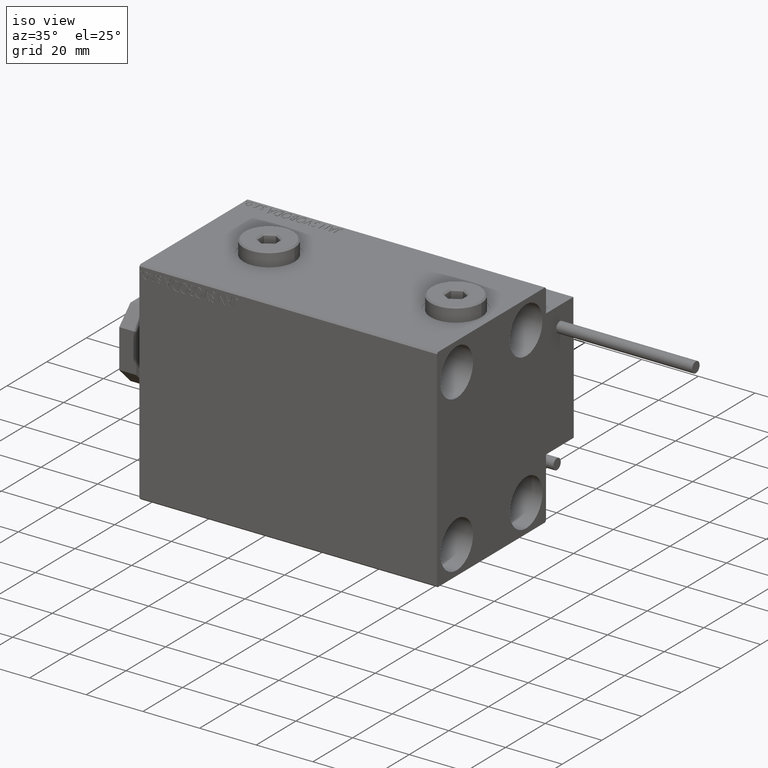
[diagram: clean part render]
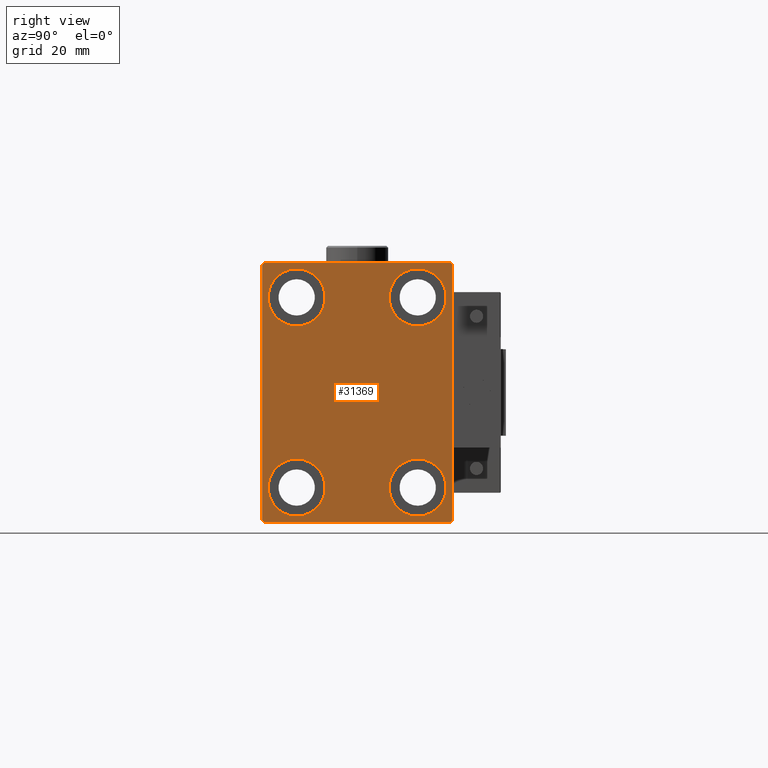
[diagram: tour spotlight — one face highlighted and labeled with its STEP entity id]
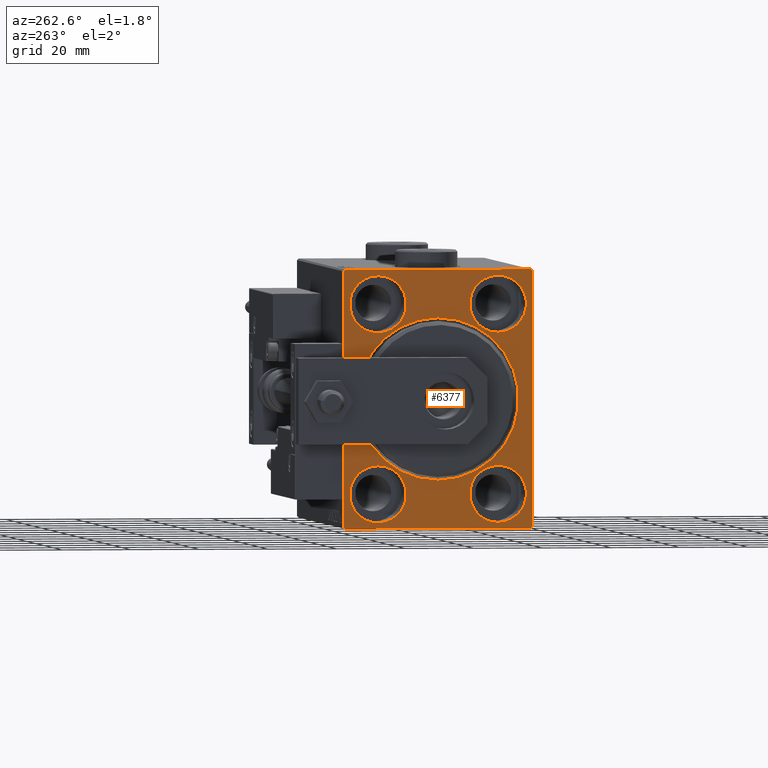
[diagram: tour spotlight — one face highlighted and labeled with its STEP entity id]
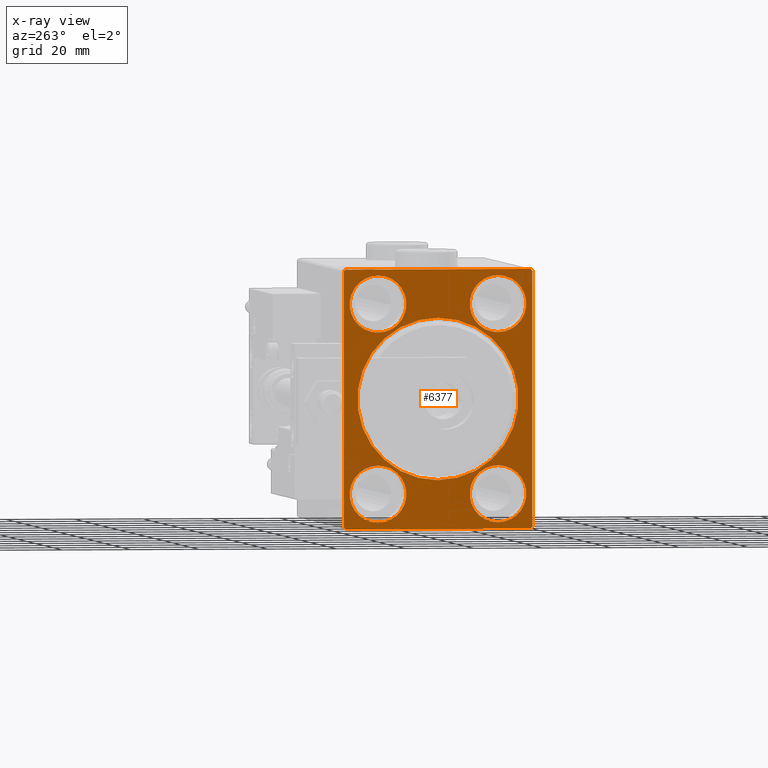
[diagram: x-ray of the same camera — body ghosted, this tour face saturated]
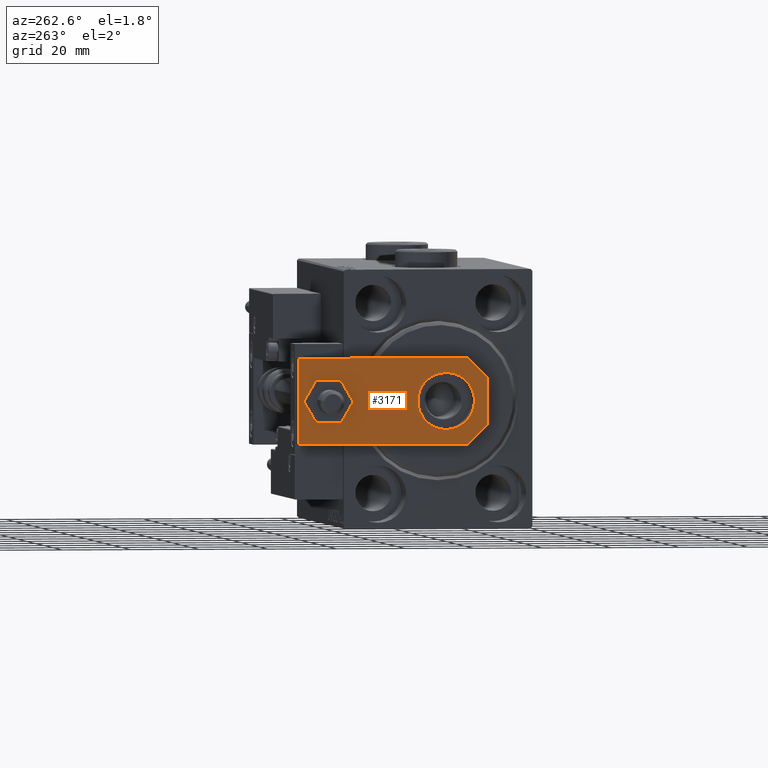
[diagram: tour spotlight — one face highlighted and labeled with its STEP entity id]
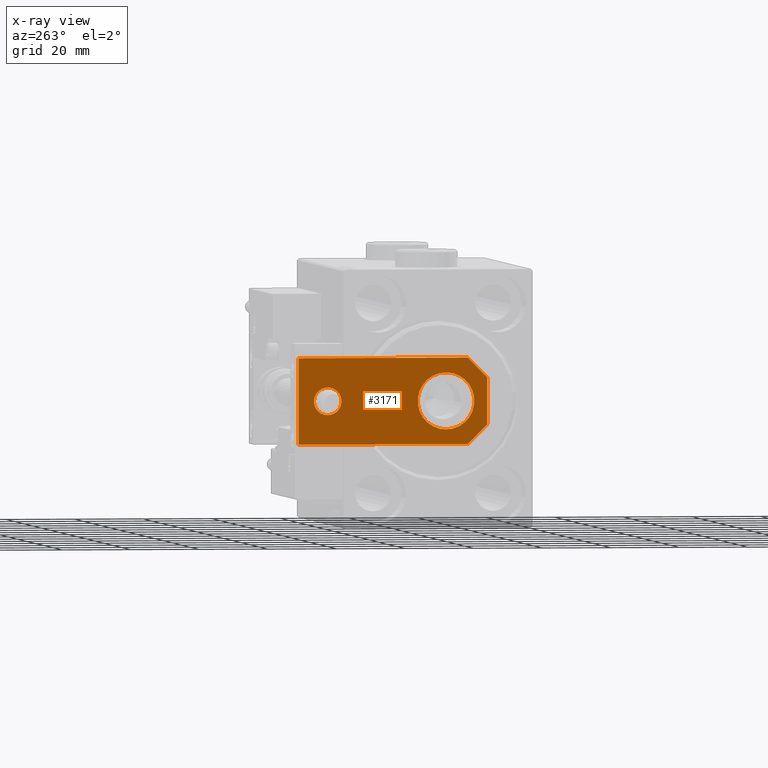
[diagram: x-ray of the same camera — body ghosted, this tour face saturated]
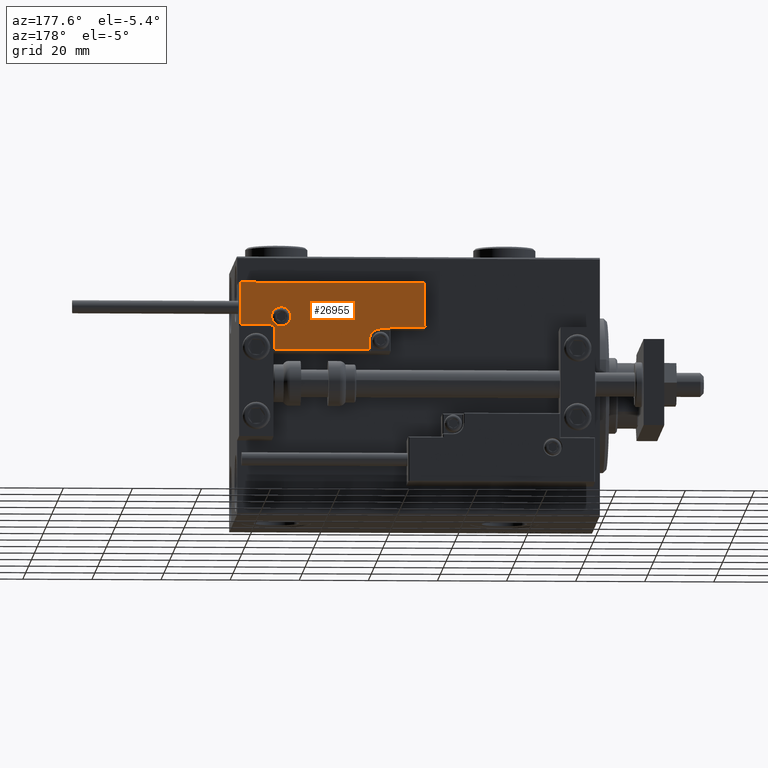
[diagram: tour spotlight — one face highlighted and labeled with its STEP entity id]
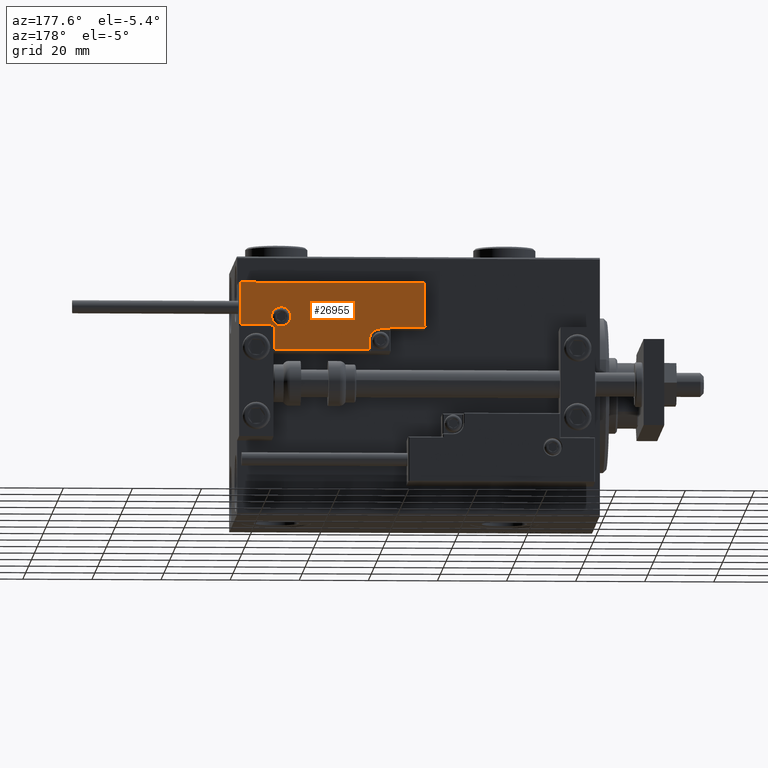
[diagram: tour spotlight — one face highlighted and labeled with its STEP entity id]
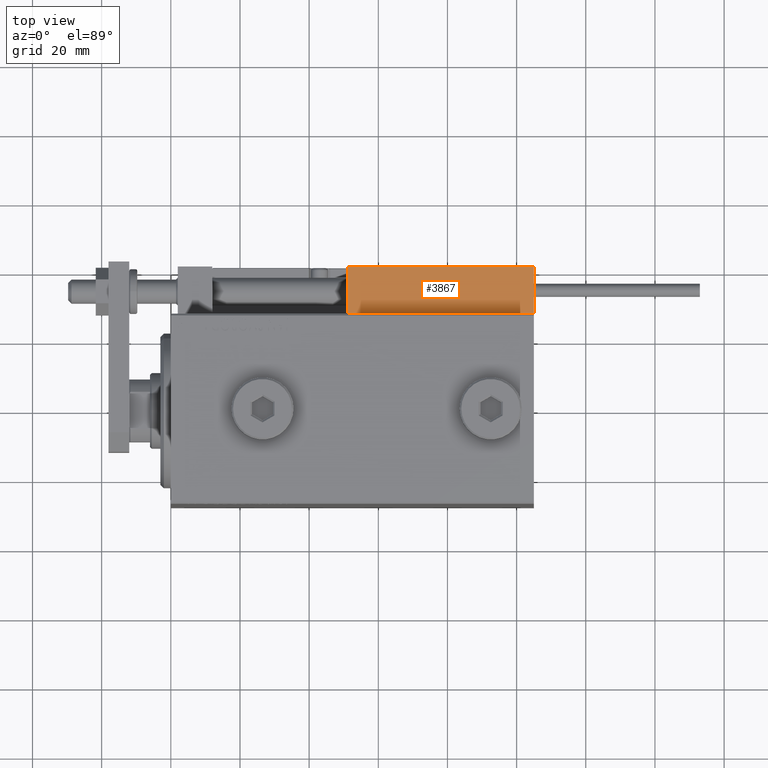
[diagram: tour spotlight — one face highlighted and labeled with its STEP entity id]
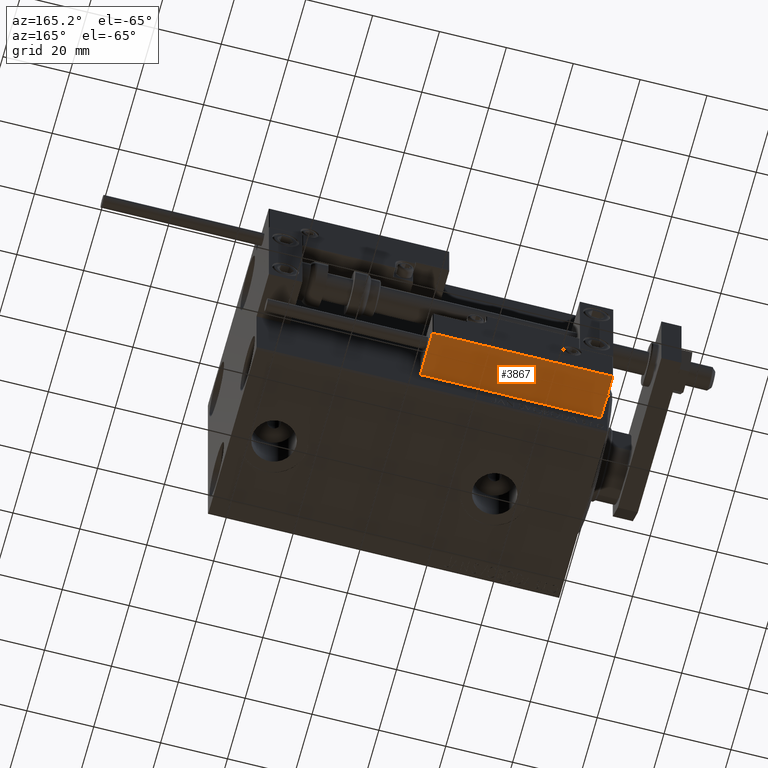
[diagram: tour spotlight — one face highlighted and labeled with its STEP entity id]
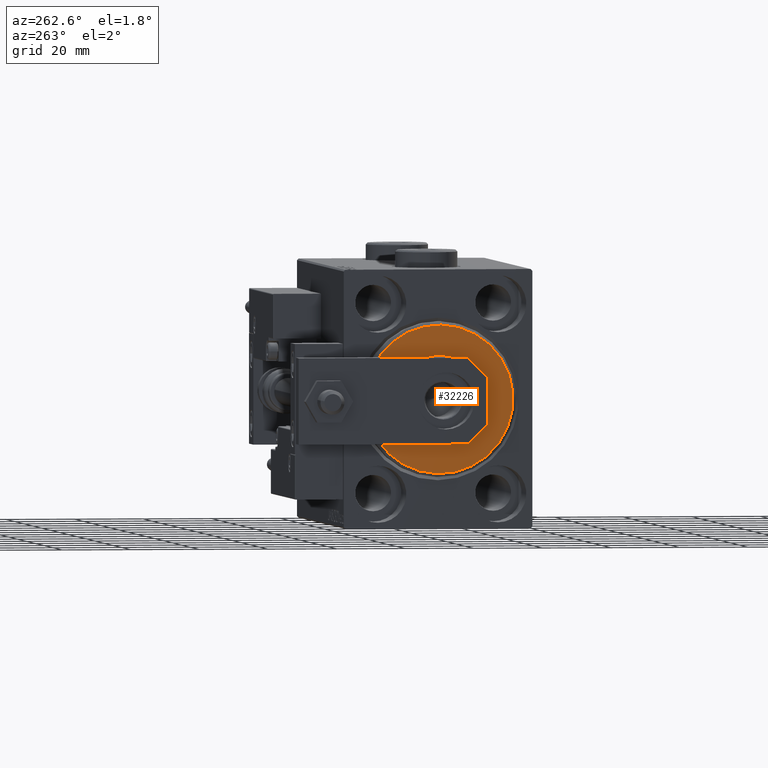
[diagram: tour spotlight — one face highlighted and labeled with its STEP entity id]
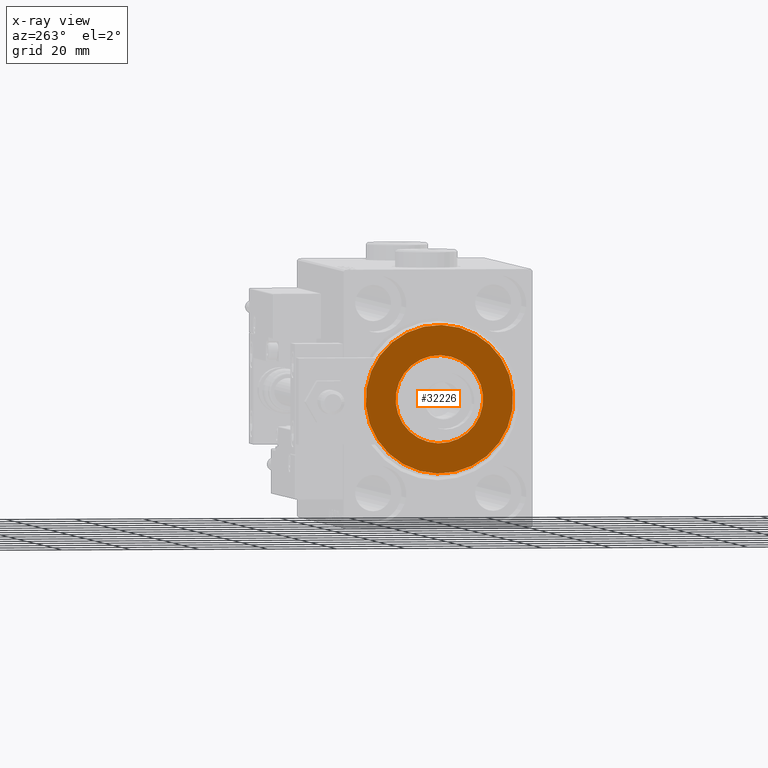
[diagram: x-ray of the same camera — body ghosted, this tour face saturated]
A machine part: a face-by-face anatomy tour. The part has 1336 B-rep faces; the first image is the clean iso view, then the 8 largest visible faces are spotlighted one at a time (largest first), each with its STEP entity span.

Face 1 — right view, entity #31369. In plain terms, the highlighted planar face has unit normal (1, 0, 0).
Definition (entity closure, byte-faithful):
#363 = EDGE_CURVE ( 'NONE', #46932, #6568, #16928, .T. ) ;
#1505 = DIRECTION ( 'NONE',  ( -1.000000000000000000, -0.000000000000000000, -0.000000000000000000 ) ) ;
#1608 = CARTESIAN_POINT ( 'NONE',  ( 105.0000000000000000, 32.24999999999981526, 32.25000000000025580 ) ) ;
#2070 = EDGE_CURVE ( 'NONE', #41735, #24689, #37078, .T. ) ;
#2355 = CARTESIAN_POINT ( 'NONE',  ( 105.0000000000000000, -17.50000000000000355, -35.75000000000000711 ) ) ;
#2599 = ORIENTED_EDGE ( 'NONE', *, *, #46224, .T. ) ;
#2686 = CARTESIAN_POINT ( 'NONE',  ( 105.0000000000000000, 26.99999999999999645, 37.50000000000000711 ) ) ;
#2760 = ORIENTED_EDGE ( 'NONE', *, *, #16825, .T. ) ;
#4090 = CARTESIAN_POINT ( 'NONE',  ( 105.0000000000000000, 17.49999999999999645, -27.50000000000000355 ) ) ;
#4278 = CARTESIAN_POINT ( 'NONE',  ( 105.0000000000000000, 17.50000000000000355, 27.49999999999999645 ) ) ;
#4390 = DIRECTION ( 'NONE',  ( 0.000000000000000000, 0.000000000000000000, 1.000000000000000000 ) ) ;
#5547 = VECTOR ( 'NONE', #32495, 1000.000000000000000 ) ;
#5867 = AXIS2_PLACEMENT_3D ( 'NONE', #37240, #1505, #49202 ) ;
#6568 = VERTEX_POINT ( 'NONE', #2355 ) ;
#6819 = ORIENTED_EDGE ( 'NONE', *, *, #27093, .T. ) ;
#7456 = AXIS2_PLACEMENT_3D ( 'NONE', #18042, #42050, #34482 ) ;
#7499 = VERTEX_POINT ( 'NONE', #44046 ) ;
#7688 = DIRECTION ( 'NONE',  ( 0.000000000000000000, 0.000000000000000000, 1.000000000000000000 ) ) ;
#8386 = CARTESIAN_POINT ( 'NONE',  ( 105.0000000000000000, -17.50000000000000355, -27.50000000000000355 ) ) ;
#8742 = VERTEX_POINT ( 'NONE', #24942 ) ;
#9049 = CIRCLE ( 'NONE', #17331, 8.249999999999992895 ) ;
#9052 = VERTEX_POINT ( 'NONE', #15753 ) ;
#9120 = EDGE_LOOP ( 'NONE', ( #44323, #2760, #39120, #50841, #15457, #25682, #9324, #46531 ) ) ;
#9281 = ORIENTED_EDGE ( 'NONE', *, *, #43198, .T. ) ;
#9324 = ORIENTED_EDGE ( 'NONE', *, *, #33389, .T. ) ;
#9526 = EDGE_CURVE ( 'NONE', #6568, #46932, #17100, .T. ) ;
#10147 = ORIENTED_EDGE ( 'NONE', *, *, #32814, .T. ) ;
#10327 = CARTESIAN_POINT ( 'NONE',  ( 105.0000000000000000, -17.49999999999999645, 27.49999999999999645 ) ) ;
#10636 = DIRECTION ( 'NONE',  ( -1.000000000000000000, -0.000000000000000000, -0.000000000000000000 ) ) ;
#10743 = VECTOR ( 'NONE', #34453, 1000.000000000000000 ) ;
#10936 = LINE ( 'NONE', #38089, #36266 ) ;
#11043 = VERTEX_POINT ( 'NONE', #35884 ) ;
#11314 = DIRECTION ( 'NONE',  ( -0.000000000000000000, 0.7071067811865474617, 0.7071067811865474617 ) ) ;
#11572 = LINE ( 'NONE', #31937, #46350 ) ;
#12235 = CIRCLE ( 'NONE', #19714, 8.249999999999992895 ) ;
#12473 = CARTESIAN_POINT ( 'NONE',  ( 105.0000000000000000, -17.49999999999999645, 27.49999999999999645 ) ) ;
#12550 = DIRECTION ( 'NONE',  ( 0.000000000000000000, 0.000000000000000000, 1.000000000000000000 ) ) ;
#13637 = VERTEX_POINT ( 'NONE', #20362 ) ;
#14336 = FACE_BOUND ( 'NONE', #28182, .T. ) ;
#15250 = EDGE_CURVE ( 'NONE', #26062, #16053, #12235, .T. ) ;
#15457 = ORIENTED_EDGE ( 'NONE', *, *, #22909, .T. ) ;
#15753 = CARTESIAN_POINT ( 'NONE',  ( 105.0000000000000000, 17.49999999999999645, -35.75000000000000711 ) ) ;
#16053 = VERTEX_POINT ( 'NONE', #51347 ) ;
#16190 = DIRECTION ( 'NONE',  ( -1.000000000000000000, -0.000000000000000000, -0.000000000000000000 ) ) ;
#16305 = CARTESIAN_POINT ( 'NONE',  ( 105.0000000000000000, -32.25000000000038369, -32.24999999999949551 ) ) ;
#16515 = CARTESIAN_POINT ( 'NONE',  ( 105.0000000000000000, 17.49999999999999645, -19.25000000000000355 ) ) ;
#16825 = EDGE_CURVE ( 'NONE', #11043, #7499, #35983, .T. ) ;
#16928 = CIRCLE ( 'NONE', #17922, 8.250000000000000000 ) ;
#17100 = CIRCLE ( 'NONE', #31265, 8.250000000000000000 ) ;
#17331 = AXIS2_PLACEMENT_3D ( 'NONE', #4278, #35583, #7688 ) ;
#17922 = AXIS2_PLACEMENT_3D ( 'NONE', #8386, #16190, #12550 ) ;
#18042 = CARTESIAN_POINT ( 'NONE',  ( 105.0000000000000000, 17.49999999999999645, -27.50000000000000355 ) ) ;
#18529 = CARTESIAN_POINT ( 'NONE',  ( 105.0000000000000000, -27.50000000000000355, 37.50000000000000000 ) ) ;
#18688 = AXIS2_PLACEMENT_3D ( 'NONE', #49511, #50983, #35124 ) ;
#19083 = ORIENTED_EDGE ( 'NONE', *, *, #15250, .T. ) ;
#19486 = CARTESIAN_POINT ( 'NONE',  ( 105.0000000000000000, 27.49999999999999645, 37.50000000000000711 ) ) ;
#19714 = AXIS2_PLACEMENT_3D ( 'NONE', #10327, #29644, #26253 ) ;
#19804 = DIRECTION ( 'NONE',  ( 0.000000000000000000, -0.7071067811865474617, -0.7071067811865474617 ) ) ;
#20008 = DIRECTION ( 'NONE',  ( 0.000000000000000000, -1.000000000000000000, -1.261617073437677999E-16 ) ) ;
#20362 = CARTESIAN_POINT ( 'NONE',  ( 105.0000000000000000, 17.50000000000000355, 35.74999999999999289 ) ) ;
#20475 = CARTESIAN_POINT ( 'NONE',  ( 105.0000000000000000, -17.49999999999999645, 19.25000000000000000 ) ) ;
#20776 = CIRCLE ( 'NONE', #7456, 8.250000000000000000 ) ;
#20982 = ORIENTED_EDGE ( 'NONE', *, *, #9526, .T. ) ;
#21239 = EDGE_CURVE ( 'NONE', #7499, #8742, #22193, .T. ) ;
#22155 = FACE_BOUND ( 'NONE', #26990, .T. ) ;
#22193 = LINE ( 'NONE', #18529, #10743 ) ;
#22519 = CIRCLE ( 'NONE', #5867, 8.249999999999992895 ) ;
#22909 = EDGE_CURVE ( 'NONE', #50211, #42072, #26083, .T. ) ;
#23148 = DIRECTION ( 'NONE',  ( 0.000000000000000000, 0.000000000000000000, 1.000000000000000000 ) ) ;
#23611 = CARTESIAN_POINT ( 'NONE',  ( 105.0000000000000000, 17.50000000000000355, 19.25000000000000000 ) ) ;
#24689 = VERTEX_POINT ( 'NONE', #2686 ) ;
#24942 = CARTESIAN_POINT ( 'NONE',  ( 105.0000000000000000, -27.50000000000000355, -37.00000000000000000 ) ) ;
#25682 = ORIENTED_EDGE ( 'NONE', *, *, #35705, .T. ) ;
#26062 = VERTEX_POINT ( 'NONE', #20475 ) ;
#26083 = LINE ( 'NONE', #27565, #45807 ) ;
#26253 = DIRECTION ( 'NONE',  ( 0.000000000000000000, 0.000000000000000000, 1.000000000000000000 ) ) ;
#26458 = CIRCLE ( 'NONE', #39768, 8.249999999999992895 ) ;
#26990 = EDGE_LOOP ( 'NONE', ( #6819, #9281 ) ) ;
#27093 = EDGE_CURVE ( 'NONE', #29339, #13637, #22519, .T. ) ;
#27291 = FACE_BOUND ( 'NONE', #28400, .T. ) ;
#27559 = FACE_BOUND ( 'NONE', #42987, .T. ) ;
#27565 = CARTESIAN_POINT ( 'NONE',  ( 105.0000000000000000, -27.50000000000000355, -37.50000000000000000 ) ) ;
#27744 = VECTOR ( 'NONE', #44890, 1000.000000000000000 ) ;
#28182 = EDGE_LOOP ( 'NONE', ( #20982, #45523 ) ) ;
#28400 = EDGE_LOOP ( 'NONE', ( #2599, #10147 ) ) ;
#29048 = EDGE_CURVE ( 'NONE', #24689, #11043, #39323, .T. ) ;
#29339 = VERTEX_POINT ( 'NONE', #23611 ) ;
#29644 = DIRECTION ( 'NONE',  ( -1.000000000000000000, -0.000000000000000000, -0.000000000000000000 ) ) ;
#31265 = AXIS2_PLACEMENT_3D ( 'NONE', #34893, #10636, #23148 ) ;
#31369 = ADVANCED_FACE ( 'NONE', ( #27291, #27559, #22155, #14336, #37810 ), #46834, .T. ) ;
#31937 = CARTESIAN_POINT ( 'NONE',  ( 105.0000000000000000, 32.24999999999999289, -32.24999999999999289 ) ) ;
#31985 = LINE ( 'NONE', #16305, #5547 ) ;
#32103 = AXIS2_PLACEMENT_3D ( 'NONE', #4090, #51249, #43715 ) ;
#32495 = DIRECTION ( 'NONE',  ( -0.000000000000000000, 0.7071067811865378028, -0.7071067811865573427 ) ) ;
#32814 = EDGE_CURVE ( 'NONE', #49092, #9052, #51195, .T. ) ;
#33389 = EDGE_CURVE ( 'NONE', #38894, #41735, #10936, .T. ) ;
#33526 = ORIENTED_EDGE ( 'NONE', *, *, #37163, .T. ) ;
#33712 = CARTESIAN_POINT ( 'NONE',  ( 105.0000000000000000, 26.99999999999998934, -37.50000000000000000 ) ) ;
#34433 = DIRECTION ( 'NONE',  ( 0.000000000000000000, -9.251858538542970348E-17, 1.000000000000000000 ) ) ;
#34453 = DIRECTION ( 'NONE',  ( 0.000000000000000000, 0.000000000000000000, -1.000000000000000000 ) ) ;
#34482 = DIRECTION ( 'NONE',  ( 0.000000000000000000, 0.000000000000000000, 1.000000000000000000 ) ) ;
#34893 = CARTESIAN_POINT ( 'NONE',  ( 105.0000000000000000, -17.50000000000000355, -27.50000000000000355 ) ) ;
#35124 = DIRECTION ( 'NONE',  ( 0.000000000000000000, 0.000000000000000000, -1.000000000000000000 ) ) ;
#35583 = DIRECTION ( 'NONE',  ( -1.000000000000000000, -0.000000000000000000, -0.000000000000000000 ) ) ;
#35705 = EDGE_CURVE ( 'NONE', #42072, #38894, #11572, .T. ) ;
#35727 = CARTESIAN_POINT ( 'NONE',  ( 105.0000000000000000, -32.25000000000000000, 32.25000000000000000 ) ) ;
#35884 = CARTESIAN_POINT ( 'NONE',  ( 105.0000000000000000, -27.00000000000000355, 37.50000000000000000 ) ) ;
#35983 = LINE ( 'NONE', #35727, #48077 ) ;
#36266 = VECTOR ( 'NONE', #34433, 1000.000000000000000 ) ;
#36667 = CARTESIAN_POINT ( 'NONE',  ( 105.0000000000000000, 27.49999999999999645, 37.00000000000001421 ) ) ;
#37078 = LINE ( 'NONE', #1608, #27744 ) ;
#37163 = EDGE_CURVE ( 'NONE', #16053, #26062, #26458, .T. ) ;
#37240 = CARTESIAN_POINT ( 'NONE',  ( 105.0000000000000000, 17.50000000000000355, 27.49999999999999645 ) ) ;
#37803 = VECTOR ( 'NONE', #20008, 1000.000000000000000 ) ;
#37810 = FACE_OUTER_BOUND ( 'NONE', #9120, .T. ) ;
#38089 = CARTESIAN_POINT ( 'NONE',  ( 105.0000000000000000, 27.50000000000000355, -37.50000000000000000 ) ) ;
#38894 = VERTEX_POINT ( 'NONE', #41783 ) ;
#39120 = ORIENTED_EDGE ( 'NONE', *, *, #21239, .T. ) ;
#39323 = LINE ( 'NONE', #19486, #37803 ) ;
#39707 = EDGE_CURVE ( 'NONE', #8742, #50211, #31985, .T. ) ;
#39768 = AXIS2_PLACEMENT_3D ( 'NONE', #12473, #40113, #4390 ) ;
#40113 = DIRECTION ( 'NONE',  ( -1.000000000000000000, -0.000000000000000000, -0.000000000000000000 ) ) ;
#41559 = CARTESIAN_POINT ( 'NONE',  ( 105.0000000000000000, -27.00000000000001776, -37.50000000000000000 ) ) ;
#41735 = VERTEX_POINT ( 'NONE', #36667 ) ;
#41783 = CARTESIAN_POINT ( 'NONE',  ( 105.0000000000000000, 27.50000000000000355, -36.99999999999998579 ) ) ;
#42050 = DIRECTION ( 'NONE',  ( -1.000000000000000000, -0.000000000000000000, -0.000000000000000000 ) ) ;
#42072 = VERTEX_POINT ( 'NONE', #33712 ) ;
#42987 = EDGE_LOOP ( 'NONE', ( #19083, #33526 ) ) ;
#43198 = EDGE_CURVE ( 'NONE', #13637, #29339, #9049, .T. ) ;
#43715 = DIRECTION ( 'NONE',  ( 0.000000000000000000, 0.000000000000000000, 1.000000000000000000 ) ) ;
#44046 = CARTESIAN_POINT ( 'NONE',  ( 105.0000000000000000, -27.50000000000000355, 37.00000000000000000 ) ) ;
#44323 = ORIENTED_EDGE ( 'NONE', *, *, #29048, .T. ) ;
#44890 = DIRECTION ( 'NONE',  ( -0.000000000000000000, -0.7071067811865524577, 0.7071067811865426878 ) ) ;
#45523 = ORIENTED_EDGE ( 'NONE', *, *, #363, .T. ) ;
#45807 = VECTOR ( 'NONE', #51243, 1000.000000000000000 ) ;
#46224 = EDGE_CURVE ( 'NONE', #9052, #49092, #20776, .T. ) ;
#46350 = VECTOR ( 'NONE', #11314, 1000.000000000000114 ) ;
#46531 = ORIENTED_EDGE ( 'NONE', *, *, #2070, .T. ) ;
#46834 = PLANE ( 'NONE',  #18688 ) ;
#46932 = VERTEX_POINT ( 'NONE', #50733 ) ;
#48077 = VECTOR ( 'NONE', #19804, 1000.000000000000114 ) ;
#49092 = VERTEX_POINT ( 'NONE', #16515 ) ;
#49202 = DIRECTION ( 'NONE',  ( 0.000000000000000000, 0.000000000000000000, 1.000000000000000000 ) ) ;
#49511 = CARTESIAN_POINT ( 'NONE',  ( 105.0000000000000000, 0.000000000000000000, 0.000000000000000000 ) ) ;
#50211 = VERTEX_POINT ( 'NONE', #41559 ) ;
#50733 = CARTESIAN_POINT ( 'NONE',  ( 105.0000000000000000, -17.50000000000000355, -19.25000000000000355 ) ) ;
#50841 = ORIENTED_EDGE ( 'NONE', *, *, #39707, .T. ) ;
#50983 = DIRECTION ( 'NONE',  ( 1.000000000000000000, 0.000000000000000000, 0.000000000000000000 ) ) ;
#51195 = CIRCLE ( 'NONE', #32103, 8.250000000000000000 ) ;
#51243 = DIRECTION ( 'NONE',  ( 0.000000000000000000, 1.000000000000000000, 0.000000000000000000 ) ) ;
#51249 = DIRECTION ( 'NONE',  ( -1.000000000000000000, -0.000000000000000000, -0.000000000000000000 ) ) ;
#51347 = CARTESIAN_POINT ( 'NONE',  ( 105.0000000000000000, -17.49999999999999645, 35.74999999999999289 ) ) ;

Face 2 — auxiliary view, entity #6377. An x-ray twin of the same camera follows (body ghosted, this face saturated) — the face is partly hidden behind the body. In plain terms, the highlighted planar face has unit normal (1, 0, 0).
Definition (entity closure, byte-faithful):
#101 = ORIENTED_EDGE ( 'NONE', *, *, #1358, .F. ) ;
#682 = CARTESIAN_POINT ( 'NONE',  ( 0.000000000000000000, 17.50000000000000355, 27.49999999999999645 ) ) ;
#787 = ORIENTED_EDGE ( 'NONE', *, *, #21414, .T. ) ;
#1060 = DIRECTION ( 'NONE',  ( 0.000000000000000000, 0.000000000000000000, -1.000000000000000000 ) ) ;
#1358 = EDGE_CURVE ( 'NONE', #42911, #25354, #10200, .T. ) ;
#1729 = VERTEX_POINT ( 'NONE', #24125 ) ;
#2901 = DIRECTION ( 'NONE',  ( 0.000000000000000000, 0.000000000000000000, 1.000000000000000000 ) ) ;
#2961 = EDGE_CURVE ( 'NONE', #5026, #43404, #3285, .T. ) ;
#3160 = CARTESIAN_POINT ( 'NONE',  ( 0.000000000000000000, 26.99999999999999645, 37.50000000000000711 ) ) ;
#3285 = LINE ( 'NONE', #50961, #17744 ) ;
#3718 = DIRECTION ( 'NONE',  ( 0.000000000000000000, -9.251858538542970348E-17, 1.000000000000000000 ) ) ;
#4393 = CARTESIAN_POINT ( 'NONE',  ( 0.000000000000000000, 17.50000000000000355, 19.25000000000000000 ) ) ;
#4457 = ORIENTED_EDGE ( 'NONE', *, *, #2961, .F. ) ;
#4848 = EDGE_LOOP ( 'NONE', ( #11920, #25903 ) ) ;
#4918 = CARTESIAN_POINT ( 'NONE',  ( 0.000000000000000000, 0.000000000000000000, 0.000000000000000000 ) ) ;
#5026 = VERTEX_POINT ( 'NONE', #35853 ) ;
#5178 = DIRECTION ( 'NONE',  ( 1.000000000000000000, 0.000000000000000000, 0.000000000000000000 ) ) ;
#5921 = CIRCLE ( 'NONE', #19231, 8.249999999999992895 ) ;
#6377 = ADVANCED_FACE ( 'NONE', ( #36028, #32115, #47996, #21916, #37823, #21136 ), #40962, .F. ) ;
#6567 = EDGE_CURVE ( 'NONE', #24945, #30302, #12880, .T. ) ;
#6698 = EDGE_CURVE ( 'NONE', #30302, #24945, #34554, .T. ) ;
#6858 = DIRECTION ( 'NONE',  ( -1.000000000000000000, 0.000000000000000000, 0.000000000000000000 ) ) ;
#6981 = DIRECTION ( 'NONE',  ( 0.000000000000000000, -0.7071067811865474617, -0.7071067811865474617 ) ) ;
#7163 = ORIENTED_EDGE ( 'NONE', *, *, #39915, .T. ) ;
#8051 = EDGE_LOOP ( 'NONE', ( #13714, #15641 ) ) ;
#8492 = ORIENTED_EDGE ( 'NONE', *, *, #6567, .T. ) ;
#9141 = CARTESIAN_POINT ( 'NONE',  ( 0.000000000000000000, 0.000000000000000000, 0.000000000000000000 ) ) ;
#9277 = CARTESIAN_POINT ( 'NONE',  ( 0.000000000000000000, -17.50000000000000355, -35.75000000000000711 ) ) ;
#9348 = AXIS2_PLACEMENT_3D ( 'NONE', #35208, #31825, #47698 ) ;
#9543 = ORIENTED_EDGE ( 'NONE', *, *, #24925, .F. ) ;
#9621 = DIRECTION ( 'NONE',  ( 0.000000000000000000, 0.000000000000000000, 1.000000000000000000 ) ) ;
#10169 = DIRECTION ( 'NONE',  ( 1.000000000000000000, 0.000000000000000000, 0.000000000000000000 ) ) ;
#10200 = CIRCLE ( 'NONE', #9348, 8.250000000000000000 ) ;
#10691 = CARTESIAN_POINT ( 'NONE',  ( 0.000000000000000000, 0.000000000000000000, 23.50000000000001776 ) ) ;
#10843 = EDGE_CURVE ( 'NONE', #26483, #43404, #22011, .T. ) ;
#10899 = CIRCLE ( 'NONE', #37536, 8.249999999999992895 ) ;
#10975 = CARTESIAN_POINT ( 'NONE',  ( 0.000000000000000000, -27.00000000000001776, -37.50000000000000000 ) ) ;
#11069 = CARTESIAN_POINT ( 'NONE',  ( 0.000000000000000000, 27.50000000000000355, -36.99999999999998579 ) ) ;
#11330 = DIRECTION ( 'NONE',  ( -1.000000000000000000, 0.000000000000000000, 0.000000000000000000 ) ) ;
#11371 = AXIS2_PLACEMENT_3D ( 'NONE', #17959, #25038, #9621 ) ;
#11481 = CARTESIAN_POINT ( 'NONE',  ( 0.000000000000000000, 17.49999999999999645, -27.50000000000000355 ) ) ;
#11551 = VECTOR ( 'NONE', #48472, 1000.000000000000114 ) ;
#11683 = ORIENTED_EDGE ( 'NONE', *, *, #49621, .T. ) ;
#11920 = ORIENTED_EDGE ( 'NONE', *, *, #46044, .F. ) ;
#12163 = VERTEX_POINT ( 'NONE', #48873 ) ;
#12287 = VERTEX_POINT ( 'NONE', #16809 ) ;
#12573 = VECTOR ( 'NONE', #46914, 1000.000000000000000 ) ;
#12880 = CIRCLE ( 'NONE', #40352, 23.50000000000001776 ) ;
#13010 = VERTEX_POINT ( 'NONE', #4393 ) ;
#13638 = CIRCLE ( 'NONE', #15301, 8.249999999999992895 ) ;
#13714 = ORIENTED_EDGE ( 'NONE', *, *, #33027, .F. ) ;
#13744 = AXIS2_PLACEMENT_3D ( 'NONE', #4918, #5178, #29684 ) ;
#14449 = ORIENTED_EDGE ( 'NONE', *, *, #16663, .F. ) ;
#14505 = DIRECTION ( 'NONE',  ( -1.000000000000000000, 0.000000000000000000, 0.000000000000000000 ) ) ;
#14748 = DIRECTION ( 'NONE',  ( 0.000000000000000000, 0.000000000000000000, 1.000000000000000000 ) ) ;
#14934 = CARTESIAN_POINT ( 'NONE',  ( 0.000000000000000000, 17.50000000000000355, 27.49999999999999645 ) ) ;
#14964 = DIRECTION ( 'NONE',  ( -0.000000000000000000, 0.7071067811865524577, -0.7071067811865426878 ) ) ;
#15301 = AXIS2_PLACEMENT_3D ( 'NONE', #50451, #14505, #30419 ) ;
#15370 = AXIS2_PLACEMENT_3D ( 'NONE', #11481, #35484, #2901 ) ;
#15641 = ORIENTED_EDGE ( 'NONE', *, *, #50387, .F. ) ;
#16164 = EDGE_CURVE ( 'NONE', #25354, #42911, #49666, .T. ) ;
#16663 = EDGE_CURVE ( 'NONE', #25755, #35482, #27474, .T. ) ;
#16724 = CARTESIAN_POINT ( 'NONE',  ( 0.000000000000000000, 17.49999999999999645, -27.50000000000000355 ) ) ;
#16809 = CARTESIAN_POINT ( 'NONE',  ( 0.000000000000000000, 17.50000000000000355, 35.74999999999999289 ) ) ;
#17744 = VECTOR ( 'NONE', #20211, 1000.000000000000000 ) ;
#17756 = ORIENTED_EDGE ( 'NONE', *, *, #6698, .T. ) ;
#17959 = CARTESIAN_POINT ( 'NONE',  ( 0.000000000000000000, -17.50000000000000355, -27.50000000000000355 ) ) ;
#18613 = EDGE_LOOP ( 'NONE', ( #8492, #17756 ) ) ;
#19111 = VERTEX_POINT ( 'NONE', #39842 ) ;
#19123 = CARTESIAN_POINT ( 'NONE',  ( 0.000000000000000000, 26.99999999999999645, 37.50000000000000711 ) ) ;
#19217 = CARTESIAN_POINT ( 'NONE',  ( 0.000000000000000000, 27.50000000000000355, -36.99999999999998579 ) ) ;
#19231 = AXIS2_PLACEMENT_3D ( 'NONE', #14934, #6858, #46738 ) ;
#19265 = CARTESIAN_POINT ( 'NONE',  ( 0.000000000000000000, 0.000000000000000000, 0.000000000000000000 ) ) ;
#19670 = CARTESIAN_POINT ( 'NONE',  ( 0.000000000000000000, -17.49999999999999645, 27.49999999999999645 ) ) ;
#20211 = DIRECTION ( 'NONE',  ( 0.000000000000000000, 0.000000000000000000, -1.000000000000000000 ) ) ;
#21136 = FACE_OUTER_BOUND ( 'NONE', #21189, .T. ) ;
#21189 = EDGE_LOOP ( 'NONE', ( #4457, #787, #14449, #7163, #25349, #11683, #9543, #23737 ) ) ;
#21414 = EDGE_CURVE ( 'NONE', #5026, #35482, #29191, .T. ) ;
#21781 = VECTOR ( 'NONE', #6981, 1000.000000000000114 ) ;
#21916 = FACE_BOUND ( 'NONE', #8051, .T. ) ;
#22011 = LINE ( 'NONE', #22527, #37196 ) ;
#22527 = CARTESIAN_POINT ( 'NONE',  ( 0.000000000000000000, -27.00000000000001776, -37.50000000000000000 ) ) ;
#22723 = CARTESIAN_POINT ( 'NONE',  ( 0.000000000000000000, 17.49999999999999645, -35.75000000000000711 ) ) ;
#23146 = LINE ( 'NONE', #19217, #21781 ) ;
#23548 = DIRECTION ( 'NONE',  ( 0.000000000000000000, -1.000000000000000000, -1.261617073437677999E-16 ) ) ;
#23737 = ORIENTED_EDGE ( 'NONE', *, *, #10843, .T. ) ;
#24125 = CARTESIAN_POINT ( 'NONE',  ( 0.000000000000000000, 17.49999999999999645, -19.25000000000000355 ) ) ;
#24925 = EDGE_CURVE ( 'NONE', #26483, #12163, #51066, .T. ) ;
#24945 = VERTEX_POINT ( 'NONE', #10691 ) ;
#24959 = AXIS2_PLACEMENT_3D ( 'NONE', #16724, #32662, #29449 ) ;
#25038 = DIRECTION ( 'NONE',  ( -1.000000000000000000, 0.000000000000000000, 0.000000000000000000 ) ) ;
#25349 = ORIENTED_EDGE ( 'NONE', *, *, #45869, .F. ) ;
#25354 = VERTEX_POINT ( 'NONE', #39563 ) ;
#25687 = ORIENTED_EDGE ( 'NONE', *, *, #16164, .F. ) ;
#25755 = VERTEX_POINT ( 'NONE', #3160 ) ;
#25903 = ORIENTED_EDGE ( 'NONE', *, *, #31147, .F. ) ;
#25971 = CARTESIAN_POINT ( 'NONE',  ( 0.000000000000000000, -27.00000000000000355, 37.50000000000000000 ) ) ;
#26483 = VERTEX_POINT ( 'NONE', #10975 ) ;
#26616 = CARTESIAN_POINT ( 'NONE',  ( 0.000000000000000000, -27.50000000000000355, -37.50000000000000000 ) ) ;
#26857 = DIRECTION ( 'NONE',  ( 1.000000000000000000, 0.000000000000000000, 0.000000000000000000 ) ) ;
#27280 = EDGE_LOOP ( 'NONE', ( #45973, #29225 ) ) ;
#27474 = LINE ( 'NONE', #43366, #31416 ) ;
#27488 = LINE ( 'NONE', #19123, #34700 ) ;
#28419 = CARTESIAN_POINT ( 'NONE',  ( 0.000000000000000000, -27.50000000000000355, 37.00000000000000000 ) ) ;
#29191 = LINE ( 'NONE', #28419, #11551 ) ;
#29225 = ORIENTED_EDGE ( 'NONE', *, *, #48948, .F. ) ;
#29277 = EDGE_CURVE ( 'NONE', #29428, #19111, #13638, .T. ) ;
#29428 = VERTEX_POINT ( 'NONE', #36896 ) ;
#29449 = DIRECTION ( 'NONE',  ( 0.000000000000000000, 0.000000000000000000, 1.000000000000000000 ) ) ;
#29665 = EDGE_LOOP ( 'NONE', ( #25687, #101 ) ) ;
#29684 = DIRECTION ( 'NONE',  ( 0.000000000000000000, 0.000000000000000000, -1.000000000000000000 ) ) ;
#29813 = DIRECTION ( 'NONE',  ( 0.000000000000000000, 0.000000000000000000, 1.000000000000000000 ) ) ;
#30302 = VERTEX_POINT ( 'NONE', #38509 ) ;
#30419 = DIRECTION ( 'NONE',  ( 0.000000000000000000, 0.000000000000000000, 1.000000000000000000 ) ) ;
#31147 = EDGE_CURVE ( 'NONE', #38882, #1729, #37022, .T. ) ;
#31416 = VECTOR ( 'NONE', #23548, 1000.000000000000000 ) ;
#31825 = DIRECTION ( 'NONE',  ( -1.000000000000000000, 0.000000000000000000, 0.000000000000000000 ) ) ;
#32115 = FACE_BOUND ( 'NONE', #4848, .T. ) ;
#32511 = DIRECTION ( 'NONE',  ( -1.000000000000000000, 0.000000000000000000, 0.000000000000000000 ) ) ;
#32662 = DIRECTION ( 'NONE',  ( -1.000000000000000000, 0.000000000000000000, 0.000000000000000000 ) ) ;
#33027 = EDGE_CURVE ( 'NONE', #12287, #13010, #37089, .T. ) ;
#34554 = CIRCLE ( 'NONE', #13744, 23.50000000000001776 ) ;
#34700 = VECTOR ( 'NONE', #14964, 1000.000000000000000 ) ;
#35208 = CARTESIAN_POINT ( 'NONE',  ( 0.000000000000000000, -17.50000000000000355, -27.50000000000000355 ) ) ;
#35451 = AXIS2_PLACEMENT_3D ( 'NONE', #682, #32511, #29813 ) ;
#35482 = VERTEX_POINT ( 'NONE', #25971 ) ;
#35484 = DIRECTION ( 'NONE',  ( -1.000000000000000000, 0.000000000000000000, 0.000000000000000000 ) ) ;
#35853 = CARTESIAN_POINT ( 'NONE',  ( 0.000000000000000000, -27.50000000000000355, 37.00000000000000000 ) ) ;
#36028 = FACE_BOUND ( 'NONE', #18613, .T. ) ;
#36896 = CARTESIAN_POINT ( 'NONE',  ( 0.000000000000000000, -17.49999999999999645, 35.74999999999999289 ) ) ;
#37022 = CIRCLE ( 'NONE', #15370, 8.250000000000000000 ) ;
#37089 = CIRCLE ( 'NONE', #35451, 8.249999999999992895 ) ;
#37196 = VECTOR ( 'NONE', #42844, 1000.000000000000000 ) ;
#37536 = AXIS2_PLACEMENT_3D ( 'NONE', #19670, #11330, #14748 ) ;
#37823 = FACE_BOUND ( 'NONE', #29665, .T. ) ;
#38509 = CARTESIAN_POINT ( 'NONE',  ( 0.000000000000000000, 2.877919977996282293E-15, -23.50000000000001776 ) ) ;
#38882 = VERTEX_POINT ( 'NONE', #22723 ) ;
#39563 = CARTESIAN_POINT ( 'NONE',  ( 0.000000000000000000, -17.50000000000000355, -19.25000000000000355 ) ) ;
#39842 = CARTESIAN_POINT ( 'NONE',  ( 0.000000000000000000, -17.49999999999999645, 19.25000000000000000 ) ) ;
#39915 = EDGE_CURVE ( 'NONE', #25755, #45121, #27488, .T. ) ;
#40352 = AXIS2_PLACEMENT_3D ( 'NONE', #19265, #26857, #50050 ) ;
#40962 = PLANE ( 'NONE',  #45349 ) ;
#41605 = CARTESIAN_POINT ( 'NONE',  ( 0.000000000000000000, -27.50000000000000355, -37.00000000000000000 ) ) ;
#42605 = LINE ( 'NONE', #43093, #46565 ) ;
#42844 = DIRECTION ( 'NONE',  ( -0.000000000000000000, -0.7071067811865378028, 0.7071067811865573427 ) ) ;
#42911 = VERTEX_POINT ( 'NONE', #9277 ) ;
#43093 = CARTESIAN_POINT ( 'NONE',  ( 0.000000000000000000, 27.50000000000000355, -37.50000000000000000 ) ) ;
#43366 = CARTESIAN_POINT ( 'NONE',  ( 0.000000000000000000, 27.49999999999999645, 37.50000000000000711 ) ) ;
#43404 = VERTEX_POINT ( 'NONE', #41605 ) ;
#45121 = VERTEX_POINT ( 'NONE', #47951 ) ;
#45349 = AXIS2_PLACEMENT_3D ( 'NONE', #9141, #10169, #1060 ) ;
#45869 = EDGE_CURVE ( 'NONE', #48165, #45121, #42605, .T. ) ;
#45973 = ORIENTED_EDGE ( 'NONE', *, *, #29277, .F. ) ;
#46044 = EDGE_CURVE ( 'NONE', #1729, #38882, #46596, .T. ) ;
#46565 = VECTOR ( 'NONE', #3718, 1000.000000000000000 ) ;
#46596 = CIRCLE ( 'NONE', #24959, 8.250000000000000000 ) ;
#46738 = DIRECTION ( 'NONE',  ( 0.000000000000000000, 0.000000000000000000, 1.000000000000000000 ) ) ;
#46914 = DIRECTION ( 'NONE',  ( 0.000000000000000000, 1.000000000000000000, 0.000000000000000000 ) ) ;
#47698 = DIRECTION ( 'NONE',  ( 0.000000000000000000, 0.000000000000000000, 1.000000000000000000 ) ) ;
#47951 = CARTESIAN_POINT ( 'NONE',  ( 0.000000000000000000, 27.49999999999999645, 37.00000000000001421 ) ) ;
#47996 = FACE_BOUND ( 'NONE', #27280, .T. ) ;
#48165 = VERTEX_POINT ( 'NONE', #11069 ) ;
#48472 = DIRECTION ( 'NONE',  ( -0.000000000000000000, 0.7071067811865474617, 0.7071067811865474617 ) ) ;
#48873 = CARTESIAN_POINT ( 'NONE',  ( 0.000000000000000000, 26.99999999999998934, -37.50000000000000000 ) ) ;
#48948 = EDGE_CURVE ( 'NONE', #19111, #29428, #10899, .T. ) ;
#49621 = EDGE_CURVE ( 'NONE', #48165, #12163, #23146, .T. ) ;
#49666 = CIRCLE ( 'NONE', #11371, 8.250000000000000000 ) ;
#50050 = DIRECTION ( 'NONE',  ( 0.000000000000000000, 0.000000000000000000, -1.000000000000000000 ) ) ;
#50387 = EDGE_CURVE ( 'NONE', #13010, #12287, #5921, .T. ) ;
#50451 = CARTESIAN_POINT ( 'NONE',  ( 0.000000000000000000, -17.49999999999999645, 27.49999999999999645 ) ) ;
#50961 = CARTESIAN_POINT ( 'NONE',  ( 0.000000000000000000, -27.50000000000000355, 37.50000000000000000 ) ) ;
#51066 = LINE ( 'NONE', #26616, #12573 ) ;

Face 3 — auxiliary view, entity #3171. An x-ray twin of the same camera follows (body ghosted, this face saturated) — the face is partly hidden behind the body. In plain terms, the highlighted planar face has unit normal (-1, 0, 0).
Definition (entity closure, byte-faithful):
#40 = DIRECTION ( 'NONE',  ( 0.7071067811865467956, -0.7071067811865483499, 0.000000000000000000 ) ) ;
#637 = CIRCLE ( 'NONE', #7301, 4.000000000000000888 ) ;
#2649 = FACE_OUTER_BOUND ( 'NONE', #22660, .T. ) ;
#2666 = ORIENTED_EDGE ( 'NONE', *, *, #3776, .F. ) ;
#2906 = EDGE_LOOP ( 'NONE', ( #14270, #16103 ) ) ;
#3171 = ADVANCED_FACE ( 'NONE', ( #7058, #2649, #7323 ), #38876, .T. ) ;
#3776 = EDGE_CURVE ( 'NONE', #31055, #49589, #31963, .T. ) ;
#3956 = ORIENTED_EDGE ( 'NONE', *, *, #49032, .T. ) ;
#6017 = ORIENTED_EDGE ( 'NONE', *, *, #43969, .T. ) ;
#7006 = LINE ( 'NONE', #18983, #29682 ) ;
#7058 = FACE_BOUND ( 'NONE', #2906, .T. ) ;
#7301 = AXIS2_PLACEMENT_3D ( 'NONE', #9971, #19067, #46210 ) ;
#7323 = FACE_BOUND ( 'NONE', #19185, .T. ) ;
#9444 = AXIS2_PLACEMENT_3D ( 'NONE', #31602, #11763, #38652 ) ;
#9736 = DIRECTION ( 'NONE',  ( 0.000000000000000000, 0.000000000000000000, 1.000000000000000000 ) ) ;
#9971 = CARTESIAN_POINT ( 'NONE',  ( -1.432611055310774642E-16, 46.50000000000000000, 6.000000000000000000 ) ) ;
#11763 = DIRECTION ( 'NONE',  ( 0.000000000000000000, 0.000000000000000000, 1.000000000000000000 ) ) ;
#12330 = VERTEX_POINT ( 'NONE', #18110 ) ;
#12580 = CIRCLE ( 'NONE', #21750, 4.000000000000000888 ) ;
#14270 = ORIENTED_EDGE ( 'NONE', *, *, #50205, .F. ) ;
#14731 = DIRECTION ( 'NONE',  ( -6.308085367188389994E-17, 1.000000000000000000, 0.000000000000000000 ) ) ;
#14924 = VECTOR ( 'NONE', #36496, 1000.000000000000000 ) ;
#16103 = ORIENTED_EDGE ( 'NONE', *, *, #42229, .F. ) ;
#17144 = LINE ( 'NONE', #37510, #26702 ) ;
#18110 = CARTESIAN_POINT ( 'NONE',  ( 6.839999999999998970, 4.814824860968089633E-32, 6.000000000000000000 ) ) ;
#18181 = CARTESIAN_POINT ( 'NONE',  ( -6.840000000000012292, 4.814824860968089633E-32, 6.000000000000000000 ) ) ;
#18295 = ORIENTED_EDGE ( 'NONE', *, *, #24147, .T. ) ;
#18983 = CARTESIAN_POINT ( 'NONE',  ( 3.419999999999990603, -3.419999999999999485, 6.000000000000000000 ) ) ;
#19067 = DIRECTION ( 'NONE',  ( 0.000000000000000000, 0.000000000000000000, 1.000000000000000000 ) ) ;
#19185 = EDGE_LOOP ( 'NONE', ( #40373, #2666 ) ) ;
#19874 = VECTOR ( 'NONE', #40, 1000.000000000000000 ) ;
#20631 = VERTEX_POINT ( 'NONE', #50697 ) ;
#21596 = DIRECTION ( 'NONE',  ( -9.462128050782584375E-17, -1.000000000000000000, 0.000000000000000000 ) ) ;
#21750 = AXIS2_PLACEMENT_3D ( 'NONE', #36109, #29059, #41823 ) ;
#22203 = CARTESIAN_POINT ( 'NONE',  ( 0.000000000000000000, 0.000000000000000000, 6.000000000000000000 ) ) ;
#22313 = LINE ( 'NONE', #50682, #45859 ) ;
#22660 = EDGE_LOOP ( 'NONE', ( #18295, #6017, #28207, #42440, #3956, #32127 ) ) ;
#22749 = AXIS2_PLACEMENT_3D ( 'NONE', #22203, #23222, #50582 ) ;
#23222 = DIRECTION ( 'NONE',  ( -0.000000000000000000, 0.000000000000000000, 1.000000000000000000 ) ) ;
#24147 = EDGE_CURVE ( 'NONE', #26321, #20631, #17144, .T. ) ;
#24295 = CARTESIAN_POINT ( 'NONE',  ( -3.420000000000013696, -3.420000000000006146, 6.000000000000000000 ) ) ;
#24496 = LINE ( 'NONE', #40396, #14924 ) ;
#25110 = VERTEX_POINT ( 'NONE', #39887 ) ;
#26321 = VERTEX_POINT ( 'NONE', #39461 ) ;
#26438 = DIRECTION ( 'NONE',  ( 1.000000000000000000, 0.000000000000000000, 0.000000000000000000 ) ) ;
#26702 = VECTOR ( 'NONE', #21596, 1000.000000000000000 ) ;
#27672 = AXIS2_PLACEMENT_3D ( 'NONE', #45456, #9736, #26438 ) ;
#28207 = ORIENTED_EDGE ( 'NONE', *, *, #45314, .T. ) ;
#28398 = EDGE_CURVE ( 'NONE', #49589, #31055, #30174, .T. ) ;
#29059 = DIRECTION ( 'NONE',  ( 0.000000000000000000, 0.000000000000000000, 1.000000000000000000 ) ) ;
#29682 = VECTOR ( 'NONE', #38819, 1000.000000000000114 ) ;
#30174 = CIRCLE ( 'NONE', #27672, 8.250000000000000000 ) ;
#31055 = VERTEX_POINT ( 'NONE', #37611 ) ;
#31602 = CARTESIAN_POINT ( 'NONE',  ( -9.629649721936179265E-32, 11.99999999999999645, 6.000000000000000000 ) ) ;
#31625 = CARTESIAN_POINT ( 'NONE',  ( 12.50000000000000000, 55.00000000000000000, 6.000000000000000000 ) ) ;
#31963 = CIRCLE ( 'NONE', #9444, 8.250000000000000000 ) ;
#32127 = ORIENTED_EDGE ( 'NONE', *, *, #37550, .T. ) ;
#32732 = LINE ( 'NONE', #33246, #40588 ) ;
#33246 = CARTESIAN_POINT ( 'NONE',  ( 12.50000000000000000, 55.00000000000000000, 6.000000000000000000 ) ) ;
#33333 = CARTESIAN_POINT ( 'NONE',  ( 4.000000000000000888, 46.50000000000000000, 6.000000000000000000 ) ) ;
#34357 = VERTEX_POINT ( 'NONE', #18181 ) ;
#36109 = CARTESIAN_POINT ( 'NONE',  ( -1.432611055310774642E-16, 46.50000000000000000, 6.000000000000000000 ) ) ;
#36496 = DIRECTION ( 'NONE',  ( 1.000000000000000000, 0.000000000000000000, 0.000000000000000000 ) ) ;
#36922 = VERTEX_POINT ( 'NONE', #42076 ) ;
#36986 = VERTEX_POINT ( 'NONE', #31625 ) ;
#37510 = CARTESIAN_POINT ( 'NONE',  ( -12.49999999999999822, 55.00000000000000000, 6.000000000000000000 ) ) ;
#37519 = CARTESIAN_POINT ( 'NONE',  ( -8.250000000000000000, 11.99999999999999645, 6.000000000000000000 ) ) ;
#37550 = EDGE_CURVE ( 'NONE', #36986, #26321, #32732, .T. ) ;
#37611 = CARTESIAN_POINT ( 'NONE',  ( 8.250000000000000000, 11.99999999999999822, 6.000000000000000000 ) ) ;
#38497 = EDGE_CURVE ( 'NONE', #12330, #25110, #7006, .T. ) ;
#38652 = DIRECTION ( 'NONE',  ( 1.000000000000000000, 0.000000000000000000, 0.000000000000000000 ) ) ;
#38819 = DIRECTION ( 'NONE',  ( 0.7071067811865483499, 0.7071067811865465735, -0.000000000000000000 ) ) ;
#38876 = PLANE ( 'NONE',  #22749 ) ;
#39461 = CARTESIAN_POINT ( 'NONE',  ( -12.49999999999999822, 55.00000000000000000, 6.000000000000000000 ) ) ;
#39887 = CARTESIAN_POINT ( 'NONE',  ( 12.50000000000000355, 5.659999999999991260, 6.000000000000000000 ) ) ;
#40373 = ORIENTED_EDGE ( 'NONE', *, *, #28398, .F. ) ;
#40396 = CARTESIAN_POINT ( 'NONE',  ( -12.50000000000000355, 4.814824860968089633E-32, 6.000000000000000000 ) ) ;
#40588 = VECTOR ( 'NONE', #49117, 1000.000000000000000 ) ;
#41823 = DIRECTION ( 'NONE',  ( 1.000000000000000000, 0.000000000000000000, 0.000000000000000000 ) ) ;
#42076 = CARTESIAN_POINT ( 'NONE',  ( -4.000000000000000888, 46.50000000000000000, 6.000000000000000000 ) ) ;
#42229 = EDGE_CURVE ( 'NONE', #46890, #36922, #637, .T. ) ;
#42440 = ORIENTED_EDGE ( 'NONE', *, *, #38497, .T. ) ;
#43969 = EDGE_CURVE ( 'NONE', #20631, #34357, #51384, .T. ) ;
#45314 = EDGE_CURVE ( 'NONE', #34357, #12330, #24496, .T. ) ;
#45456 = CARTESIAN_POINT ( 'NONE',  ( -9.629649721936179265E-32, 11.99999999999999645, 6.000000000000000000 ) ) ;
#45859 = VECTOR ( 'NONE', #14731, 1000.000000000000000 ) ;
#46210 = DIRECTION ( 'NONE',  ( 1.000000000000000000, 0.000000000000000000, 0.000000000000000000 ) ) ;
#46890 = VERTEX_POINT ( 'NONE', #33333 ) ;
#49032 = EDGE_CURVE ( 'NONE', #25110, #36986, #22313, .T. ) ;
#49117 = DIRECTION ( 'NONE',  ( -1.000000000000000000, 0.000000000000000000, 0.000000000000000000 ) ) ;
#49589 = VERTEX_POINT ( 'NONE', #37519 ) ;
#50205 = EDGE_CURVE ( 'NONE', #36922, #46890, #12580, .T. ) ;
#50582 = DIRECTION ( 'NONE',  ( 1.000000000000000000, 0.000000000000000000, 0.000000000000000000 ) ) ;
#50682 = CARTESIAN_POINT ( 'NONE',  ( 12.50000000000000355, 4.814824860968089633E-32, 6.000000000000000000 ) ) ;
#50697 = CARTESIAN_POINT ( 'NONE',  ( -12.50000000000000355, 5.660000000000005471, 6.000000000000000000 ) ) ;
#51384 = LINE ( 'NONE', #24295, #19874 ) ;

Face 4 — auxiliary view, entity #26955. In plain terms, the highlighted planar face has unit normal (-0, 1, -0).
Definition (entity closure, byte-faithful):
#337 = AXIS2_PLACEMENT_3D ( 'NONE', #37418, #14451, #45472 ) ;
#467 = CARTESIAN_POINT ( 'NONE',  ( 0.000000000000000000, 0.000000000000000000, 14.00000000000000000 ) ) ;
#1052 = ORIENTED_EDGE ( 'NONE', *, *, #15019, .T. ) ;
#1611 = CARTESIAN_POINT ( 'NONE',  ( -26.99999999999993605, 19.70000000000002061, 14.00000000000000000 ) ) ;
#1683 = VERTEX_POINT ( 'NONE', #35343 ) ;
#2256 = CARTESIAN_POINT ( 'NONE',  ( 17.00000000000000000, 6.300000000000003375, 14.00000000000000000 ) ) ;
#2782 = EDGE_CURVE ( 'NONE', #37802, #46847, #37988, .T. ) ;
#3372 = VECTOR ( 'NONE', #7922, 1000.000000000000000 ) ;
#3739 = VERTEX_POINT ( 'NONE', #27938 ) ;
#4435 = DIRECTION ( 'NONE',  ( 0.000000000000000000, -1.000000000000000000, 0.000000000000000000 ) ) ;
#4830 = VECTOR ( 'NONE', #30869, 1000.000000000000000 ) ;
#6269 = CARTESIAN_POINT ( 'NONE',  ( 10.69999999999999929, 0.3000000000000032085, 14.00000000000000000 ) ) ;
#6362 = LINE ( 'NONE', #50393, #13996 ) ;
#7263 = AXIS2_PLACEMENT_3D ( 'NONE', #12789, #28695, #16430 ) ;
#7922 = DIRECTION ( 'NONE',  ( 1.000000000000000000, -1.734723475976796001E-16, 0.000000000000000000 ) ) ;
#8813 = DIRECTION ( 'NONE',  ( -0.000000000000000000, 0.000000000000000000, 1.000000000000000000 ) ) ;
#9760 = EDGE_LOOP ( 'NONE', ( #30630, #31297, #40423, #24706, #19515, #47437, #46397, #18728, #11248, #38386, #1052 ) ) ;
#11153 = CARTESIAN_POINT ( 'NONE',  ( -14.79999999999994920, 9.800000000000004263, 14.00000000000000000 ) ) ;
#11248 = ORIENTED_EDGE ( 'NONE', *, *, #18585, .T. ) ;
#11486 = VECTOR ( 'NONE', #41609, 1000.000000000000000 ) ;
#11732 = LINE ( 'NONE', #27659, #19107 ) ;
#12789 = CARTESIAN_POINT ( 'NONE',  ( -14.79999999999994920, 9.800000000000004263, 14.00000000000000000 ) ) ;
#12863 = VERTEX_POINT ( 'NONE', #27359 ) ;
#12887 = CARTESIAN_POINT ( 'NONE',  ( -17.59999999999994813, 9.800000000000004263, 14.00000000000000000 ) ) ;
#13996 = VECTOR ( 'NONE', #22776, 1000.000000000000000 ) ;
#14451 = DIRECTION ( 'NONE',  ( 0.000000000000000000, -0.000000000000000000, -1.000000000000000000 ) ) ;
#14839 = VECTOR ( 'NONE', #44893, 1000.000000000000000 ) ;
#15019 = EDGE_CURVE ( 'NONE', #12863, #1683, #50509, .T. ) ;
#16116 = CIRCLE ( 'NONE', #27795, 2.800000000000000266 ) ;
#16430 = DIRECTION ( 'NONE',  ( 1.000000000000000000, 0.000000000000000000, 0.000000000000000000 ) ) ;
#16636 = EDGE_CURVE ( 'NONE', #33454, #44848, #19366, .T. ) ;
#17009 = ORIENTED_EDGE ( 'NONE', *, *, #29992, .T. ) ;
#18091 = CARTESIAN_POINT ( 'NONE',  ( 16.69999999999999929, 7.000000000000009770, 14.00000000000000000 ) ) ;
#18237 = CARTESIAN_POINT ( 'NONE',  ( -11.99999999999994849, 9.800000000000004263, 14.00000000000000000 ) ) ;
#18319 = VERTEX_POINT ( 'NONE', #42350 ) ;
#18585 = EDGE_CURVE ( 'NONE', #42876, #48755, #40995, .T. ) ;
#18728 = ORIENTED_EDGE ( 'NONE', *, *, #22951, .T. ) ;
#19107 = VECTOR ( 'NONE', #4435, 1000.000000000000000 ) ;
#19128 = EDGE_CURVE ( 'NONE', #48755, #12863, #6362, .T. ) ;
#19179 = AXIS2_PLACEMENT_3D ( 'NONE', #467, #8813, #47925 ) ;
#19198 = EDGE_CURVE ( 'NONE', #46847, #28634, #38443, .T. ) ;
#19366 = LINE ( 'NONE', #34531, #41430 ) ;
#19454 = CARTESIAN_POINT ( 'NONE',  ( 26.70000000000006324, 20.00000000000001776, 14.00000000000000000 ) ) ;
#19494 = DIRECTION ( 'NONE',  ( 1.000000000000000000, 0.000000000000000000, 0.000000000000000000 ) ) ;
#19515 = ORIENTED_EDGE ( 'NONE', *, *, #2782, .T. ) ;
#19637 = LINE ( 'NONE', #27748, #3372 ) ;
#20686 = EDGE_LOOP ( 'NONE', ( #27558, #17009 ) ) ;
#20844 = VERTEX_POINT ( 'NONE', #12887 ) ;
#21154 = CIRCLE ( 'NONE', #337, 3.299999999999997158 ) ;
#21796 = CARTESIAN_POINT ( 'NONE',  ( 11.00000000000000000, 0.3000000000000032085, 14.00000000000000000 ) ) ;
#22206 = EDGE_CURVE ( 'NONE', #1683, #18319, #11732, .T. ) ;
#22705 = CARTESIAN_POINT ( 'NONE',  ( 16.69999999999999929, 7.300000000000009592, 14.00000000000000000 ) ) ;
#22776 = DIRECTION ( 'NONE',  ( -8.006416042969869188E-16, -1.000000000000000000, 0.000000000000000000 ) ) ;
#22840 = DIRECTION ( 'NONE',  ( 1.000000000000000000, 5.782411586589357639E-16, -0.000000000000000000 ) ) ;
#22951 = EDGE_CURVE ( 'NONE', #3739, #42876, #34871, .T. ) ;
#23563 = VECTOR ( 'NONE', #22840, 1000.000000000000000 ) ;
#23695 = FACE_BOUND ( 'NONE', #20686, .T. ) ;
#24706 = ORIENTED_EDGE ( 'NONE', *, *, #30751, .T. ) ;
#24838 = CARTESIAN_POINT ( 'NONE',  ( 13.99999999999999822, 6.300000000000001599, 14.00000000000000000 ) ) ;
#25195 = LINE ( 'NONE', #21796, #11486 ) ;
#26955 = ADVANCED_FACE ( 'NONE', ( #23695, #43763 ), #28385, .T. ) ;
#27201 = EDGE_CURVE ( 'NONE', #28634, #3739, #19637, .T. ) ;
#27300 = DIRECTION ( 'NONE',  ( 0.000000000000000000, 1.000000000000000000, -0.000000000000000000 ) ) ;
#27359 = CARTESIAN_POINT ( 'NONE',  ( -26.69999999999994600, 7.300000000000005151, 14.00000000000000000 ) ) ;
#27558 = ORIENTED_EDGE ( 'NONE', *, *, #41007, .T. ) ;
#27659 = CARTESIAN_POINT ( 'NONE',  ( -16.69999999999999218, 3.252606517456513302E-15, 14.00000000000000000 ) ) ;
#27748 = CARTESIAN_POINT ( 'NONE',  ( 27.00000000000006395, 7.300000000000007816, 14.00000000000000000 ) ) ;
#27795 = AXIS2_PLACEMENT_3D ( 'NONE', #11153, #28119, #19494 ) ;
#27938 = CARTESIAN_POINT ( 'NONE',  ( 26.70000000000006324, 7.300000000000007816, 14.00000000000000000 ) ) ;
#28119 = DIRECTION ( 'NONE',  ( 0.000000000000000000, -0.000000000000000000, -1.000000000000000000 ) ) ;
#28385 = PLANE ( 'NONE',  #19179 ) ;
#28634 = VERTEX_POINT ( 'NONE', #22705 ) ;
#28695 = DIRECTION ( 'NONE',  ( 0.000000000000000000, -0.000000000000000000, -1.000000000000000000 ) ) ;
#29936 = CARTESIAN_POINT ( 'NONE',  ( 16.69999999999999929, 6.300000000000003375, 14.00000000000000000 ) ) ;
#29992 = EDGE_CURVE ( 'NONE', #20844, #39240, #16116, .T. ) ;
#30630 = ORIENTED_EDGE ( 'NONE', *, *, #22206, .T. ) ;
#30751 = EDGE_CURVE ( 'NONE', #44848, #37802, #21154, .T. ) ;
#30869 = DIRECTION ( 'NONE',  ( 9.912705577010318647E-16, 1.000000000000000000, 0.000000000000000000 ) ) ;
#31297 = ORIENTED_EDGE ( 'NONE', *, *, #42858, .T. ) ;
#32503 = VECTOR ( 'NONE', #27300, 1000.000000000000000 ) ;
#33454 = VERTEX_POINT ( 'NONE', #6269 ) ;
#34531 = CARTESIAN_POINT ( 'NONE',  ( 10.69999999999999929, 3.000000000000003109, 14.00000000000000000 ) ) ;
#34871 = LINE ( 'NONE', #19454, #32503 ) ;
#35343 = CARTESIAN_POINT ( 'NONE',  ( -16.69999999999999218, 7.300000000000003375, 14.00000000000000000 ) ) ;
#36826 = CARTESIAN_POINT ( 'NONE',  ( -16.99999999999999289, 7.300000000000003375, 14.00000000000000000 ) ) ;
#37418 = CARTESIAN_POINT ( 'NONE',  ( 13.99999999999999822, 3.000000000000002665, 14.00000000000000000 ) ) ;
#37802 = VERTEX_POINT ( 'NONE', #24838 ) ;
#37988 = LINE ( 'NONE', #2256, #23563 ) ;
#38386 = ORIENTED_EDGE ( 'NONE', *, *, #19128, .T. ) ;
#38443 = LINE ( 'NONE', #18091, #4830 ) ;
#39201 = DIRECTION ( 'NONE',  ( -0.000000000000000000, 1.000000000000000000, -0.000000000000000000 ) ) ;
#39240 = VERTEX_POINT ( 'NONE', #18237 ) ;
#40423 = ORIENTED_EDGE ( 'NONE', *, *, #16636, .T. ) ;
#40454 = CARTESIAN_POINT ( 'NONE',  ( 10.69999999999999929, 3.000000000000003109, 14.00000000000000000 ) ) ;
#40995 = LINE ( 'NONE', #1611, #14839 ) ;
#41007 = EDGE_CURVE ( 'NONE', #39240, #20844, #41397, .T. ) ;
#41397 = CIRCLE ( 'NONE', #7263, 2.800000000000000266 ) ;
#41430 = VECTOR ( 'NONE', #39201, 1000.000000000000000 ) ;
#41609 = DIRECTION ( 'NONE',  ( 1.000000000000000000, -0.000000000000000000, 0.000000000000000000 ) ) ;
#41870 = CARTESIAN_POINT ( 'NONE',  ( 26.70000000000006324, 19.70000000000001705, 14.00000000000000000 ) ) ;
#42350 = CARTESIAN_POINT ( 'NONE',  ( -16.69999999999999218, 0.3000000000000032085, 14.00000000000000000 ) ) ;
#42858 = EDGE_CURVE ( 'NONE', #18319, #33454, #25195, .T. ) ;
#42876 = VERTEX_POINT ( 'NONE', #41870 ) ;
#42981 = VECTOR ( 'NONE', #48784, 1000.000000000000000 ) ;
#43763 = FACE_OUTER_BOUND ( 'NONE', #9760, .T. ) ;
#44848 = VERTEX_POINT ( 'NONE', #40454 ) ;
#44893 = DIRECTION ( 'NONE',  ( -1.000000000000000000, 6.424901762877063495E-17, -0.000000000000000000 ) ) ;
#45472 = DIRECTION ( 'NONE',  ( 1.000000000000000000, 0.000000000000000000, 0.000000000000000000 ) ) ;
#46297 = CARTESIAN_POINT ( 'NONE',  ( -26.69999999999993534, 19.70000000000002061, 14.00000000000000000 ) ) ;
#46397 = ORIENTED_EDGE ( 'NONE', *, *, #27201, .T. ) ;
#46847 = VERTEX_POINT ( 'NONE', #29936 ) ;
#47437 = ORIENTED_EDGE ( 'NONE', *, *, #19198, .T. ) ;
#47925 = DIRECTION ( 'NONE',  ( 1.000000000000000000, 0.000000000000000000, 0.000000000000000000 ) ) ;
#48755 = VERTEX_POINT ( 'NONE', #46297 ) ;
#48784 = DIRECTION ( 'NONE',  ( 1.000000000000000000, -1.734723475976815230E-16, 0.000000000000000000 ) ) ;
#50393 = CARTESIAN_POINT ( 'NONE',  ( -26.69999999999994600, 7.000000000000005329, 14.00000000000000000 ) ) ;
#50509 = LINE ( 'NONE', #36826, #42981 ) ;

Face 5 — auxiliary view, entity #26955. In plain terms, the highlighted planar face has unit normal (0, 1, -0).
Definition (entity closure, byte-faithful):
#337 = AXIS2_PLACEMENT_3D ( 'NONE', #37418, #14451, #45472 ) ;
#467 = CARTESIAN_POINT ( 'NONE',  ( 0.000000000000000000, 0.000000000000000000, 14.00000000000000000 ) ) ;
#1052 = ORIENTED_EDGE ( 'NONE', *, *, #15019, .T. ) ;
#1611 = CARTESIAN_POINT ( 'NONE',  ( -26.99999999999993605, 19.70000000000002061, 14.00000000000000000 ) ) ;
#1683 = VERTEX_POINT ( 'NONE', #35343 ) ;
#2256 = CARTESIAN_POINT ( 'NONE',  ( 17.00000000000000000, 6.300000000000003375, 14.00000000000000000 ) ) ;
#2782 = EDGE_CURVE ( 'NONE', #37802, #46847, #37988, .T. ) ;
#3372 = VECTOR ( 'NONE', #7922, 1000.000000000000000 ) ;
#3739 = VERTEX_POINT ( 'NONE', #27938 ) ;
#4435 = DIRECTION ( 'NONE',  ( 0.000000000000000000, -1.000000000000000000, 0.000000000000000000 ) ) ;
#4830 = VECTOR ( 'NONE', #30869, 1000.000000000000000 ) ;
#6269 = CARTESIAN_POINT ( 'NONE',  ( 10.69999999999999929, 0.3000000000000032085, 14.00000000000000000 ) ) ;
#6362 = LINE ( 'NONE', #50393, #13996 ) ;
#7263 = AXIS2_PLACEMENT_3D ( 'NONE', #12789, #28695, #16430 ) ;
#7922 = DIRECTION ( 'NONE',  ( 1.000000000000000000, -1.734723475976796001E-16, 0.000000000000000000 ) ) ;
#8813 = DIRECTION ( 'NONE',  ( -0.000000000000000000, 0.000000000000000000, 1.000000000000000000 ) ) ;
#9760 = EDGE_LOOP ( 'NONE', ( #30630, #31297, #40423, #24706, #19515, #47437, #46397, #18728, #11248, #38386, #1052 ) ) ;
#11153 = CARTESIAN_POINT ( 'NONE',  ( -14.79999999999994920, 9.800000000000004263, 14.00000000000000000 ) ) ;
#11248 = ORIENTED_EDGE ( 'NONE', *, *, #18585, .T. ) ;
#11486 = VECTOR ( 'NONE', #41609, 1000.000000000000000 ) ;
#11732 = LINE ( 'NONE', #27659, #19107 ) ;
#12789 = CARTESIAN_POINT ( 'NONE',  ( -14.79999999999994920, 9.800000000000004263, 14.00000000000000000 ) ) ;
#12863 = VERTEX_POINT ( 'NONE', #27359 ) ;
#12887 = CARTESIAN_POINT ( 'NONE',  ( -17.59999999999994813, 9.800000000000004263, 14.00000000000000000 ) ) ;
#13996 = VECTOR ( 'NONE', #22776, 1000.000000000000000 ) ;
#14451 = DIRECTION ( 'NONE',  ( 0.000000000000000000, -0.000000000000000000, -1.000000000000000000 ) ) ;
#14839 = VECTOR ( 'NONE', #44893, 1000.000000000000000 ) ;
#15019 = EDGE_CURVE ( 'NONE', #12863, #1683, #50509, .T. ) ;
#16116 = CIRCLE ( 'NONE', #27795, 2.800000000000000266 ) ;
#16430 = DIRECTION ( 'NONE',  ( 1.000000000000000000, 0.000000000000000000, 0.000000000000000000 ) ) ;
#16636 = EDGE_CURVE ( 'NONE', #33454, #44848, #19366, .T. ) ;
#17009 = ORIENTED_EDGE ( 'NONE', *, *, #29992, .T. ) ;
#18091 = CARTESIAN_POINT ( 'NONE',  ( 16.69999999999999929, 7.000000000000009770, 14.00000000000000000 ) ) ;
#18237 = CARTESIAN_POINT ( 'NONE',  ( -11.99999999999994849, 9.800000000000004263, 14.00000000000000000 ) ) ;
#18319 = VERTEX_POINT ( 'NONE', #42350 ) ;
#18585 = EDGE_CURVE ( 'NONE', #42876, #48755, #40995, .T. ) ;
#18728 = ORIENTED_EDGE ( 'NONE', *, *, #22951, .T. ) ;
#19107 = VECTOR ( 'NONE', #4435, 1000.000000000000000 ) ;
#19128 = EDGE_CURVE ( 'NONE', #48755, #12863, #6362, .T. ) ;
#19179 = AXIS2_PLACEMENT_3D ( 'NONE', #467, #8813, #47925 ) ;
#19198 = EDGE_CURVE ( 'NONE', #46847, #28634, #38443, .T. ) ;
#19366 = LINE ( 'NONE', #34531, #41430 ) ;
#19454 = CARTESIAN_POINT ( 'NONE',  ( 26.70000000000006324, 20.00000000000001776, 14.00000000000000000 ) ) ;
#19494 = DIRECTION ( 'NONE',  ( 1.000000000000000000, 0.000000000000000000, 0.000000000000000000 ) ) ;
#19515 = ORIENTED_EDGE ( 'NONE', *, *, #2782, .T. ) ;
#19637 = LINE ( 'NONE', #27748, #3372 ) ;
#20686 = EDGE_LOOP ( 'NONE', ( #27558, #17009 ) ) ;
#20844 = VERTEX_POINT ( 'NONE', #12887 ) ;
#21154 = CIRCLE ( 'NONE', #337, 3.299999999999997158 ) ;
#21796 = CARTESIAN_POINT ( 'NONE',  ( 11.00000000000000000, 0.3000000000000032085, 14.00000000000000000 ) ) ;
#22206 = EDGE_CURVE ( 'NONE', #1683, #18319, #11732, .T. ) ;
#22705 = CARTESIAN_POINT ( 'NONE',  ( 16.69999999999999929, 7.300000000000009592, 14.00000000000000000 ) ) ;
#22776 = DIRECTION ( 'NONE',  ( -8.006416042969869188E-16, -1.000000000000000000, 0.000000000000000000 ) ) ;
#22840 = DIRECTION ( 'NONE',  ( 1.000000000000000000, 5.782411586589357639E-16, -0.000000000000000000 ) ) ;
#22951 = EDGE_CURVE ( 'NONE', #3739, #42876, #34871, .T. ) ;
#23563 = VECTOR ( 'NONE', #22840, 1000.000000000000000 ) ;
#23695 = FACE_BOUND ( 'NONE', #20686, .T. ) ;
#24706 = ORIENTED_EDGE ( 'NONE', *, *, #30751, .T. ) ;
#24838 = CARTESIAN_POINT ( 'NONE',  ( 13.99999999999999822, 6.300000000000001599, 14.00000000000000000 ) ) ;
#25195 = LINE ( 'NONE', #21796, #11486 ) ;
#26955 = ADVANCED_FACE ( 'NONE', ( #23695, #43763 ), #28385, .T. ) ;
#27201 = EDGE_CURVE ( 'NONE', #28634, #3739, #19637, .T. ) ;
#27300 = DIRECTION ( 'NONE',  ( 0.000000000000000000, 1.000000000000000000, -0.000000000000000000 ) ) ;
#27359 = CARTESIAN_POINT ( 'NONE',  ( -26.69999999999994600, 7.300000000000005151, 14.00000000000000000 ) ) ;
#27558 = ORIENTED_EDGE ( 'NONE', *, *, #41007, .T. ) ;
#27659 = CARTESIAN_POINT ( 'NONE',  ( -16.69999999999999218, 3.252606517456513302E-15, 14.00000000000000000 ) ) ;
#27748 = CARTESIAN_POINT ( 'NONE',  ( 27.00000000000006395, 7.300000000000007816, 14.00000000000000000 ) ) ;
#27795 = AXIS2_PLACEMENT_3D ( 'NONE', #11153, #28119, #19494 ) ;
#27938 = CARTESIAN_POINT ( 'NONE',  ( 26.70000000000006324, 7.300000000000007816, 14.00000000000000000 ) ) ;
#28119 = DIRECTION ( 'NONE',  ( 0.000000000000000000, -0.000000000000000000, -1.000000000000000000 ) ) ;
#28385 = PLANE ( 'NONE',  #19179 ) ;
#28634 = VERTEX_POINT ( 'NONE', #22705 ) ;
#28695 = DIRECTION ( 'NONE',  ( 0.000000000000000000, -0.000000000000000000, -1.000000000000000000 ) ) ;
#29936 = CARTESIAN_POINT ( 'NONE',  ( 16.69999999999999929, 6.300000000000003375, 14.00000000000000000 ) ) ;
#29992 = EDGE_CURVE ( 'NONE', #20844, #39240, #16116, .T. ) ;
#30630 = ORIENTED_EDGE ( 'NONE', *, *, #22206, .T. ) ;
#30751 = EDGE_CURVE ( 'NONE', #44848, #37802, #21154, .T. ) ;
#30869 = DIRECTION ( 'NONE',  ( 9.912705577010318647E-16, 1.000000000000000000, 0.000000000000000000 ) ) ;
#31297 = ORIENTED_EDGE ( 'NONE', *, *, #42858, .T. ) ;
#32503 = VECTOR ( 'NONE', #27300, 1000.000000000000000 ) ;
#33454 = VERTEX_POINT ( 'NONE', #6269 ) ;
#34531 = CARTESIAN_POINT ( 'NONE',  ( 10.69999999999999929, 3.000000000000003109, 14.00000000000000000 ) ) ;
#34871 = LINE ( 'NONE', #19454, #32503 ) ;
#35343 = CARTESIAN_POINT ( 'NONE',  ( -16.69999999999999218, 7.300000000000003375, 14.00000000000000000 ) ) ;
#36826 = CARTESIAN_POINT ( 'NONE',  ( -16.99999999999999289, 7.300000000000003375, 14.00000000000000000 ) ) ;
#37418 = CARTESIAN_POINT ( 'NONE',  ( 13.99999999999999822, 3.000000000000002665, 14.00000000000000000 ) ) ;
#37802 = VERTEX_POINT ( 'NONE', #24838 ) ;
#37988 = LINE ( 'NONE', #2256, #23563 ) ;
#38386 = ORIENTED_EDGE ( 'NONE', *, *, #19128, .T. ) ;
#38443 = LINE ( 'NONE', #18091, #4830 ) ;
#39201 = DIRECTION ( 'NONE',  ( -0.000000000000000000, 1.000000000000000000, -0.000000000000000000 ) ) ;
#39240 = VERTEX_POINT ( 'NONE', #18237 ) ;
#40423 = ORIENTED_EDGE ( 'NONE', *, *, #16636, .T. ) ;
#40454 = CARTESIAN_POINT ( 'NONE',  ( 10.69999999999999929, 3.000000000000003109, 14.00000000000000000 ) ) ;
#40995 = LINE ( 'NONE', #1611, #14839 ) ;
#41007 = EDGE_CURVE ( 'NONE', #39240, #20844, #41397, .T. ) ;
#41397 = CIRCLE ( 'NONE', #7263, 2.800000000000000266 ) ;
#41430 = VECTOR ( 'NONE', #39201, 1000.000000000000000 ) ;
#41609 = DIRECTION ( 'NONE',  ( 1.000000000000000000, -0.000000000000000000, 0.000000000000000000 ) ) ;
#41870 = CARTESIAN_POINT ( 'NONE',  ( 26.70000000000006324, 19.70000000000001705, 14.00000000000000000 ) ) ;
#42350 = CARTESIAN_POINT ( 'NONE',  ( -16.69999999999999218, 0.3000000000000032085, 14.00000000000000000 ) ) ;
#42858 = EDGE_CURVE ( 'NONE', #18319, #33454, #25195, .T. ) ;
#42876 = VERTEX_POINT ( 'NONE', #41870 ) ;
#42981 = VECTOR ( 'NONE', #48784, 1000.000000000000000 ) ;
#43763 = FACE_OUTER_BOUND ( 'NONE', #9760, .T. ) ;
#44848 = VERTEX_POINT ( 'NONE', #40454 ) ;
#44893 = DIRECTION ( 'NONE',  ( -1.000000000000000000, 6.424901762877063495E-17, -0.000000000000000000 ) ) ;
#45472 = DIRECTION ( 'NONE',  ( 1.000000000000000000, 0.000000000000000000, 0.000000000000000000 ) ) ;
#46297 = CARTESIAN_POINT ( 'NONE',  ( -26.69999999999993534, 19.70000000000002061, 14.00000000000000000 ) ) ;
#46397 = ORIENTED_EDGE ( 'NONE', *, *, #27201, .T. ) ;
#46847 = VERTEX_POINT ( 'NONE', #29936 ) ;
#47437 = ORIENTED_EDGE ( 'NONE', *, *, #19198, .T. ) ;
#47925 = DIRECTION ( 'NONE',  ( 1.000000000000000000, 0.000000000000000000, 0.000000000000000000 ) ) ;
#48755 = VERTEX_POINT ( 'NONE', #46297 ) ;
#48784 = DIRECTION ( 'NONE',  ( 1.000000000000000000, -1.734723475976815230E-16, 0.000000000000000000 ) ) ;
#50393 = CARTESIAN_POINT ( 'NONE',  ( -26.69999999999994600, 7.000000000000005329, 14.00000000000000000 ) ) ;
#50509 = LINE ( 'NONE', #36826, #42981 ) ;

Face 6 — top view, entity #3867. In plain terms, the highlighted planar face has unit normal (-0, -0, -1).
Definition (entity closure, byte-faithful):
#647 = ORIENTED_EDGE ( 'NONE', *, *, #32691, .T. ) ;
#1567 = LINE ( 'NONE', #49260, #47223 ) ;
#3867 = ADVANCED_FACE ( 'NONE', ( #14787 ), #7223, .F. ) ;
#5278 = ORIENTED_EDGE ( 'NONE', *, *, #32188, .T. ) ;
#6108 = AXIS2_PLACEMENT_3D ( 'NONE', #22620, #10617, #46843 ) ;
#6411 = CARTESIAN_POINT ( 'NONE',  ( 27.00000000000006395, 20.00000000000001776, 13.70000000000000107 ) ) ;
#7223 = PLANE ( 'NONE',  #6108 ) ;
#9847 = DIRECTION ( 'NONE',  ( -1.000000000000000000, 6.424901762877062263E-17, 0.000000000000000000 ) ) ;
#10617 = DIRECTION ( 'NONE',  ( -6.424901762877063495E-17, -1.000000000000000000, 0.000000000000000000 ) ) ;
#13562 = DIRECTION ( 'NONE',  ( -0.000000000000000000, -0.000000000000000000, -1.000000000000000000 ) ) ;
#14744 = LINE ( 'NONE', #6411, #21431 ) ;
#14787 = FACE_OUTER_BOUND ( 'NONE', #29531, .T. ) ;
#15397 = VECTOR ( 'NONE', #9847, 1000.000000000000000 ) ;
#16950 = EDGE_CURVE ( 'NONE', #22296, #19859, #14744, .T. ) ;
#19859 = VERTEX_POINT ( 'NONE', #36358 ) ;
#21431 = VECTOR ( 'NONE', #34828, 1000.000000000000000 ) ;
#22296 = VERTEX_POINT ( 'NONE', #28680 ) ;
#22620 = CARTESIAN_POINT ( 'NONE',  ( 27.00000000000006395, 20.00000000000001776, 14.00000000000000000 ) ) ;
#22876 = VERTEX_POINT ( 'NONE', #28964 ) ;
#28680 = CARTESIAN_POINT ( 'NONE',  ( -26.99999999999993605, 20.00000000000002132, 13.70000000000000107 ) ) ;
#28964 = CARTESIAN_POINT ( 'NONE',  ( -26.99999999999993605, 20.00000000000002132, 0.000000000000000000 ) ) ;
#29531 = EDGE_LOOP ( 'NONE', ( #44454, #37543, #5278, #647 ) ) ;
#32188 = EDGE_CURVE ( 'NONE', #19859, #50116, #35242, .T. ) ;
#32691 = EDGE_CURVE ( 'NONE', #50116, #22876, #38019, .T. ) ;
#34828 = DIRECTION ( 'NONE',  ( 1.000000000000000000, -6.424901762877063495E-17, -0.000000000000000000 ) ) ;
#35242 = LINE ( 'NONE', #47733, #43710 ) ;
#36358 = CARTESIAN_POINT ( 'NONE',  ( 27.00000000000006395, 20.00000000000001776, 13.70000000000000107 ) ) ;
#37543 = ORIENTED_EDGE ( 'NONE', *, *, #16950, .T. ) ;
#38019 = LINE ( 'NONE', #38536, #15397 ) ;
#38536 = CARTESIAN_POINT ( 'NONE',  ( 27.00000000000006395, 20.00000000000001776, 0.000000000000000000 ) ) ;
#41175 = EDGE_CURVE ( 'NONE', #22296, #22876, #1567, .T. ) ;
#43574 = DIRECTION ( 'NONE',  ( -0.000000000000000000, -0.000000000000000000, -1.000000000000000000 ) ) ;
#43667 = CARTESIAN_POINT ( 'NONE',  ( 27.00000000000006395, 20.00000000000001776, 0.000000000000000000 ) ) ;
#43710 = VECTOR ( 'NONE', #43574, 1000.000000000000000 ) ;
#44454 = ORIENTED_EDGE ( 'NONE', *, *, #41175, .F. ) ;
#46843 = DIRECTION ( 'NONE',  ( 1.000000000000000000, -6.424901762877063495E-17, 0.000000000000000000 ) ) ;
#47223 = VECTOR ( 'NONE', #13562, 1000.000000000000000 ) ;
#47733 = CARTESIAN_POINT ( 'NONE',  ( 27.00000000000006395, 20.00000000000001776, 14.00000000000000000 ) ) ;
#49260 = CARTESIAN_POINT ( 'NONE',  ( -26.99999999999993605, 20.00000000000002132, 14.00000000000000000 ) ) ;
#50116 = VERTEX_POINT ( 'NONE', #43667 ) ;

Face 7 — auxiliary view, entity #3867. In plain terms, the highlighted planar face has unit normal (0, 0, 1).
Definition (entity closure, byte-faithful):
#647 = ORIENTED_EDGE ( 'NONE', *, *, #32691, .T. ) ;
#1567 = LINE ( 'NONE', #49260, #47223 ) ;
#3867 = ADVANCED_FACE ( 'NONE', ( #14787 ), #7223, .F. ) ;
#5278 = ORIENTED_EDGE ( 'NONE', *, *, #32188, .T. ) ;
#6108 = AXIS2_PLACEMENT_3D ( 'NONE', #22620, #10617, #46843 ) ;
#6411 = CARTESIAN_POINT ( 'NONE',  ( 27.00000000000006395, 20.00000000000001776, 13.70000000000000107 ) ) ;
#7223 = PLANE ( 'NONE',  #6108 ) ;
#9847 = DIRECTION ( 'NONE',  ( -1.000000000000000000, 6.424901762877062263E-17, 0.000000000000000000 ) ) ;
#10617 = DIRECTION ( 'NONE',  ( -6.424901762877063495E-17, -1.000000000000000000, 0.000000000000000000 ) ) ;
#13562 = DIRECTION ( 'NONE',  ( -0.000000000000000000, -0.000000000000000000, -1.000000000000000000 ) ) ;
#14744 = LINE ( 'NONE', #6411, #21431 ) ;
#14787 = FACE_OUTER_BOUND ( 'NONE', #29531, .T. ) ;
#15397 = VECTOR ( 'NONE', #9847, 1000.000000000000000 ) ;
#16950 = EDGE_CURVE ( 'NONE', #22296, #19859, #14744, .T. ) ;
#19859 = VERTEX_POINT ( 'NONE', #36358 ) ;
#21431 = VECTOR ( 'NONE', #34828, 1000.000000000000000 ) ;
#22296 = VERTEX_POINT ( 'NONE', #28680 ) ;
#22620 = CARTESIAN_POINT ( 'NONE',  ( 27.00000000000006395, 20.00000000000001776, 14.00000000000000000 ) ) ;
#22876 = VERTEX_POINT ( 'NONE', #28964 ) ;
#28680 = CARTESIAN_POINT ( 'NONE',  ( -26.99999999999993605, 20.00000000000002132, 13.70000000000000107 ) ) ;
#28964 = CARTESIAN_POINT ( 'NONE',  ( -26.99999999999993605, 20.00000000000002132, 0.000000000000000000 ) ) ;
#29531 = EDGE_LOOP ( 'NONE', ( #44454, #37543, #5278, #647 ) ) ;
#32188 = EDGE_CURVE ( 'NONE', #19859, #50116, #35242, .T. ) ;
#32691 = EDGE_CURVE ( 'NONE', #50116, #22876, #38019, .T. ) ;
#34828 = DIRECTION ( 'NONE',  ( 1.000000000000000000, -6.424901762877063495E-17, -0.000000000000000000 ) ) ;
#35242 = LINE ( 'NONE', #47733, #43710 ) ;
#36358 = CARTESIAN_POINT ( 'NONE',  ( 27.00000000000006395, 20.00000000000001776, 13.70000000000000107 ) ) ;
#37543 = ORIENTED_EDGE ( 'NONE', *, *, #16950, .T. ) ;
#38019 = LINE ( 'NONE', #38536, #15397 ) ;
#38536 = CARTESIAN_POINT ( 'NONE',  ( 27.00000000000006395, 20.00000000000001776, 0.000000000000000000 ) ) ;
#41175 = EDGE_CURVE ( 'NONE', #22296, #22876, #1567, .T. ) ;
#43574 = DIRECTION ( 'NONE',  ( -0.000000000000000000, -0.000000000000000000, -1.000000000000000000 ) ) ;
#43667 = CARTESIAN_POINT ( 'NONE',  ( 27.00000000000006395, 20.00000000000001776, 0.000000000000000000 ) ) ;
#43710 = VECTOR ( 'NONE', #43574, 1000.000000000000000 ) ;
#44454 = ORIENTED_EDGE ( 'NONE', *, *, #41175, .F. ) ;
#46843 = DIRECTION ( 'NONE',  ( 1.000000000000000000, -6.424901762877063495E-17, 0.000000000000000000 ) ) ;
#47223 = VECTOR ( 'NONE', #13562, 1000.000000000000000 ) ;
#47733 = CARTESIAN_POINT ( 'NONE',  ( 27.00000000000006395, 20.00000000000001776, 14.00000000000000000 ) ) ;
#49260 = CARTESIAN_POINT ( 'NONE',  ( -26.99999999999993605, 20.00000000000002132, 14.00000000000000000 ) ) ;
#50116 = VERTEX_POINT ( 'NONE', #43667 ) ;

Face 8 — auxiliary view, entity #32226. An x-ray twin of the same camera follows (body ghosted, this face saturated) — the face is partly hidden behind the body. In plain terms, the highlighted planar face has unit normal (-1, 0, 0).
Definition (entity closure, byte-faithful):
#395 = ORIENTED_EDGE ( 'NONE', *, *, #34098, .T. ) ;
#4642 = DIRECTION ( 'NONE',  ( 0.000000000000000000, 0.000000000000000000, -1.000000000000000000 ) ) ;
#5906 = EDGE_CURVE ( 'NONE', #31015, #32863, #45321, .T. ) ;
#6268 = AXIS2_PLACEMENT_3D ( 'NONE', #39405, #39925, #35767 ) ;
#8837 = EDGE_LOOP ( 'NONE', ( #16985, #395 ) ) ;
#9753 = AXIS2_PLACEMENT_3D ( 'NONE', #32047, #47924, #4642 ) ;
#9888 = CARTESIAN_POINT ( 'NONE',  ( 3.000000000000000000, 1.561424668912874914E-15, -12.75000000000000000 ) ) ;
#10735 = ORIENTED_EDGE ( 'NONE', *, *, #37187, .T. ) ;
#11584 = CARTESIAN_POINT ( 'NONE',  ( 3.000000000000000000, 0.000000000000000000, 0.000000000000000000 ) ) ;
#12136 = EDGE_LOOP ( 'NONE', ( #10735, #31916 ) ) ;
#13000 = AXIS2_PLACEMENT_3D ( 'NONE', #34035, #49911, #38467 ) ;
#14634 = AXIS2_PLACEMENT_3D ( 'NONE', #11584, #38987, #30911 ) ;
#16985 = ORIENTED_EDGE ( 'NONE', *, *, #5906, .T. ) ;
#17018 = VERTEX_POINT ( 'NONE', #42655 ) ;
#20358 = FACE_OUTER_BOUND ( 'NONE', #8837, .T. ) ;
#21299 = CIRCLE ( 'NONE', #13000, 12.75000000000000000 ) ;
#22279 = CIRCLE ( 'NONE', #9753, 12.75000000000000000 ) ;
#23502 = PLANE ( 'NONE',  #6268 ) ;
#23801 = CIRCLE ( 'NONE', #14634, 21.50000000000000355 ) ;
#25879 = CARTESIAN_POINT ( 'NONE',  ( 3.000000000000000000, 0.000000000000000000, 21.50000000000000355 ) ) ;
#26995 = AXIS2_PLACEMENT_3D ( 'NONE', #29160, #29671, #41666 ) ;
#27571 = CARTESIAN_POINT ( 'NONE',  ( 3.000000000000000000, 2.694222958124177598E-15, -21.50000000000000355 ) ) ;
#29160 = CARTESIAN_POINT ( 'NONE',  ( 3.000000000000000000, 0.000000000000000000, 0.000000000000000000 ) ) ;
#29671 = DIRECTION ( 'NONE',  ( 1.000000000000000000, -0.000000000000000000, 0.000000000000000000 ) ) ;
#30911 = DIRECTION ( 'NONE',  ( 0.000000000000000000, 0.000000000000000000, -1.000000000000000000 ) ) ;
#31015 = VERTEX_POINT ( 'NONE', #25879 ) ;
#31916 = ORIENTED_EDGE ( 'NONE', *, *, #34729, .T. ) ;
#32047 = CARTESIAN_POINT ( 'NONE',  ( 3.000000000000000000, 0.000000000000000000, 0.000000000000000000 ) ) ;
#32226 = ADVANCED_FACE ( 'NONE', ( #20358, #43316 ), #23502, .T. ) ;
#32863 = VERTEX_POINT ( 'NONE', #27571 ) ;
#34035 = CARTESIAN_POINT ( 'NONE',  ( 3.000000000000000000, 0.000000000000000000, 0.000000000000000000 ) ) ;
#34098 = EDGE_CURVE ( 'NONE', #32863, #31015, #23801, .T. ) ;
#34729 = EDGE_CURVE ( 'NONE', #38292, #17018, #21299, .T. ) ;
#35767 = DIRECTION ( 'NONE',  ( 0.000000000000000000, 0.000000000000000000, -1.000000000000000000 ) ) ;
#37187 = EDGE_CURVE ( 'NONE', #17018, #38292, #22279, .T. ) ;
#38292 = VERTEX_POINT ( 'NONE', #9888 ) ;
#38467 = DIRECTION ( 'NONE',  ( 0.000000000000000000, 0.000000000000000000, -1.000000000000000000 ) ) ;
#38987 = DIRECTION ( 'NONE',  ( 1.000000000000000000, -0.000000000000000000, 0.000000000000000000 ) ) ;
#39405 = CARTESIAN_POINT ( 'NONE',  ( 3.000000000000000000, 0.000000000000000000, 0.000000000000000000 ) ) ;
#39925 = DIRECTION ( 'NONE',  ( 1.000000000000000000, -0.000000000000000000, 0.000000000000000000 ) ) ;
#41666 = DIRECTION ( 'NONE',  ( 0.000000000000000000, 0.000000000000000000, -1.000000000000000000 ) ) ;
#42655 = CARTESIAN_POINT ( 'NONE',  ( 3.000000000000000000, 0.000000000000000000, 12.75000000000000000 ) ) ;
#43316 = FACE_BOUND ( 'NONE', #12136, .T. ) ;
#45321 = CIRCLE ( 'NONE', #26995, 21.50000000000000355 ) ;
#47924 = DIRECTION ( 'NONE',  ( -1.000000000000000000, 0.000000000000000000, -0.000000000000000000 ) ) ;
#49911 = DIRECTION ( 'NONE',  ( -1.000000000000000000, 0.000000000000000000, -0.000000000000000000 ) ) ;